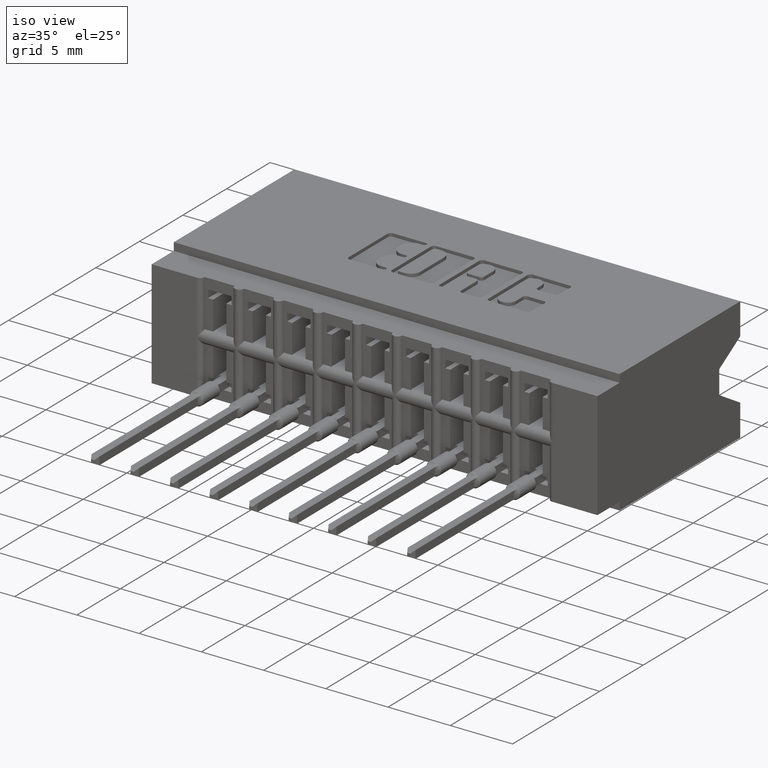
[diagram: clean part render]
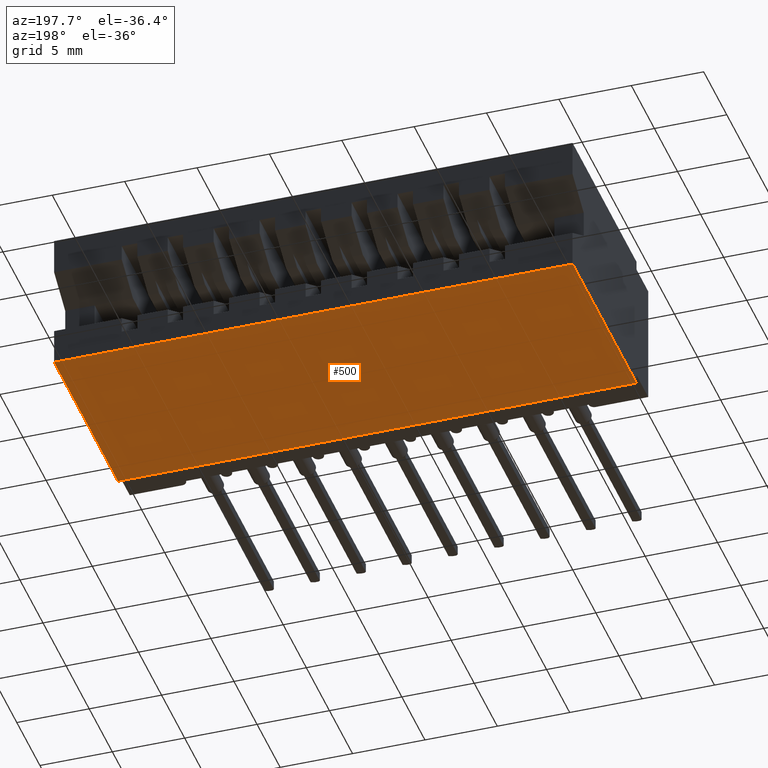
[diagram: tour spotlight — one face highlighted and labeled with its STEP entity id]
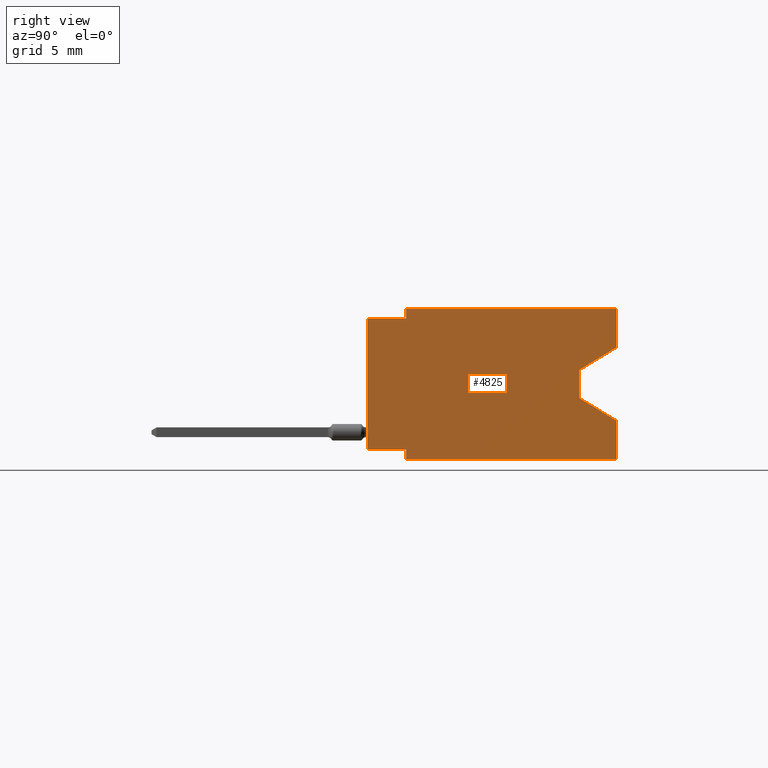
[diagram: tour spotlight — one face highlighted and labeled with its STEP entity id]
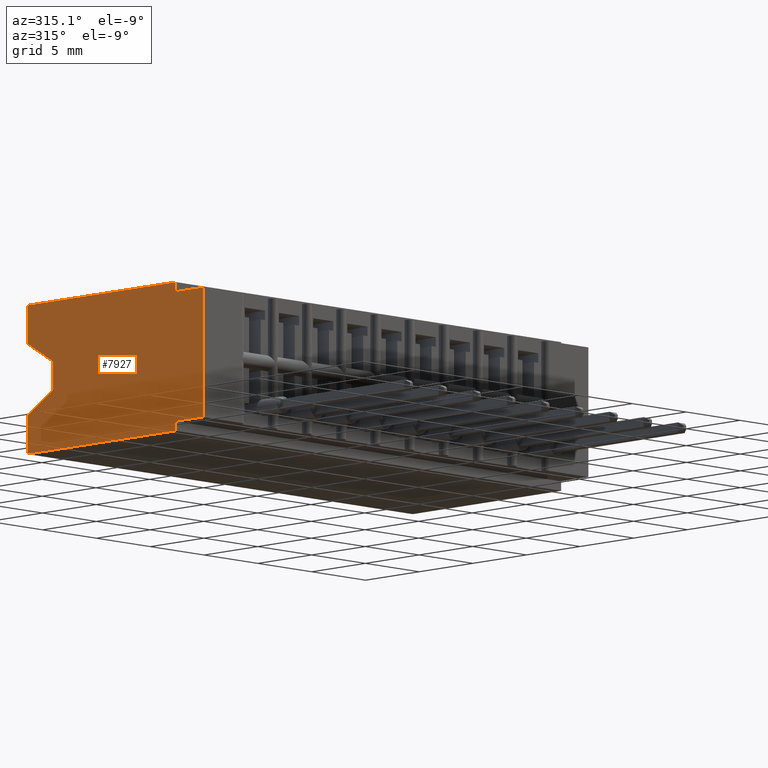
[diagram: tour spotlight — one face highlighted and labeled with its STEP entity id]
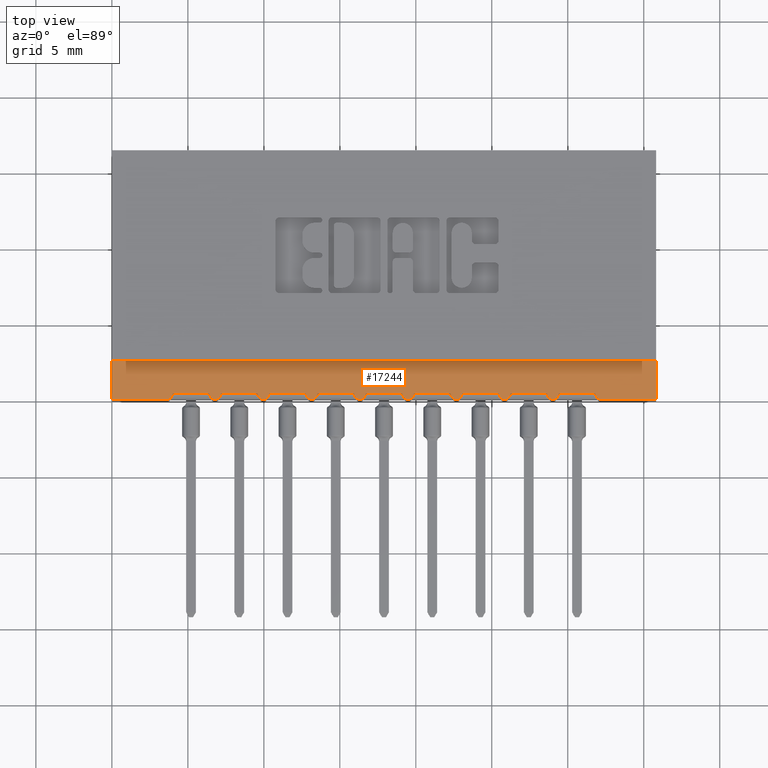
[diagram: tour spotlight — one face highlighted and labeled with its STEP entity id]
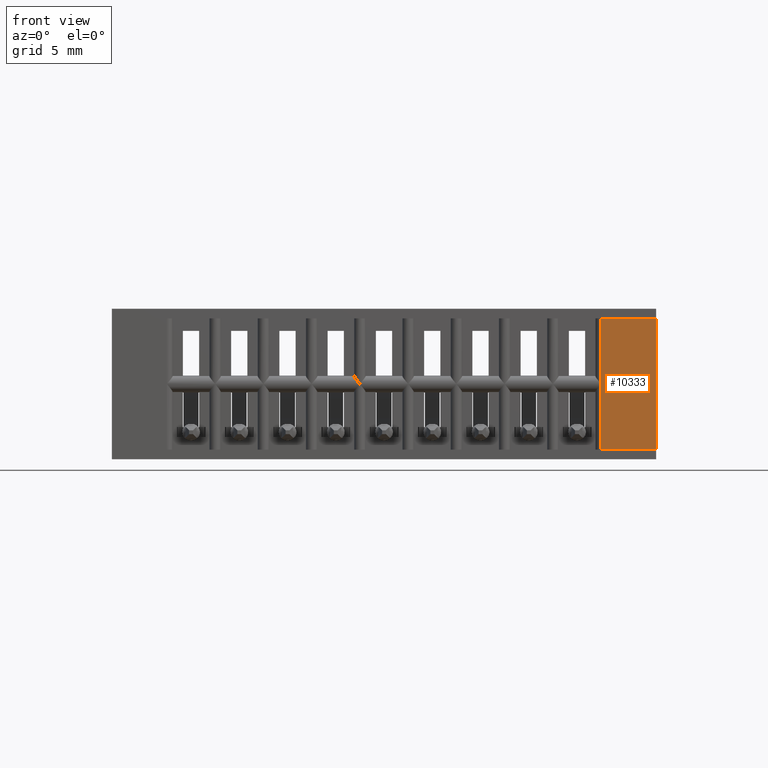
[diagram: tour spotlight — one face highlighted and labeled with its STEP entity id]
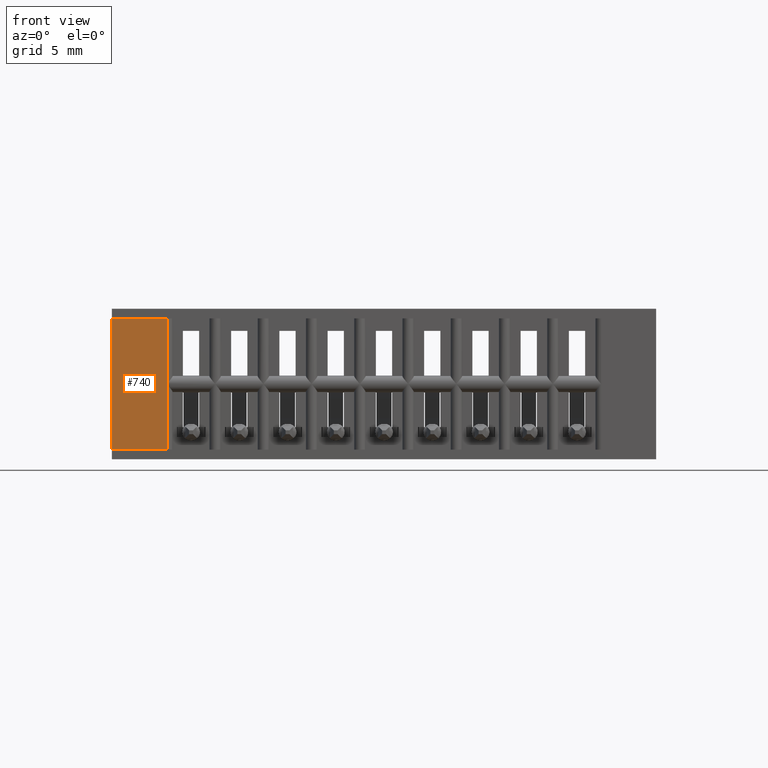
[diagram: tour spotlight — one face highlighted and labeled with its STEP entity id]
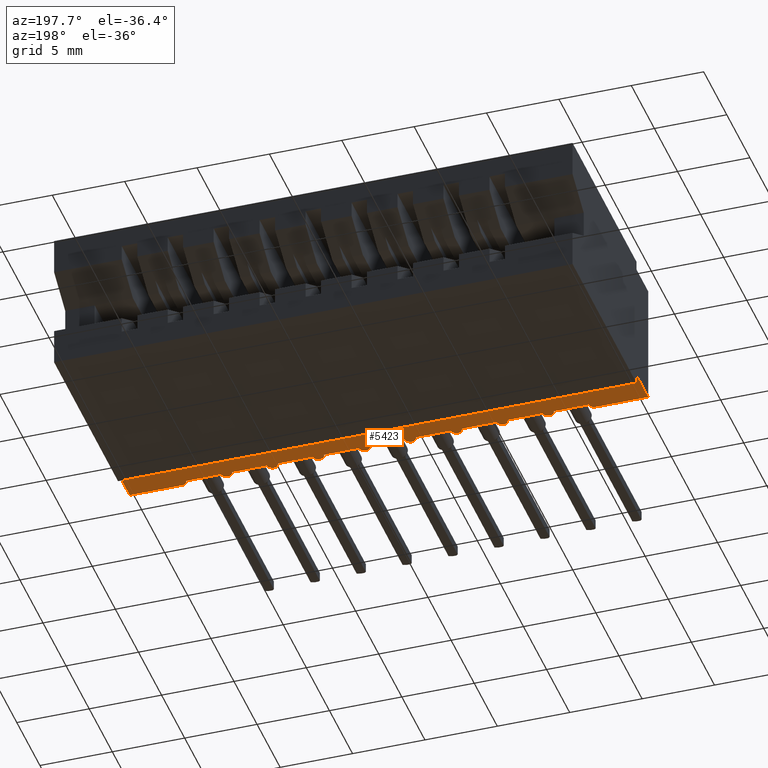
[diagram: tour spotlight — one face highlighted and labeled with its STEP entity id]
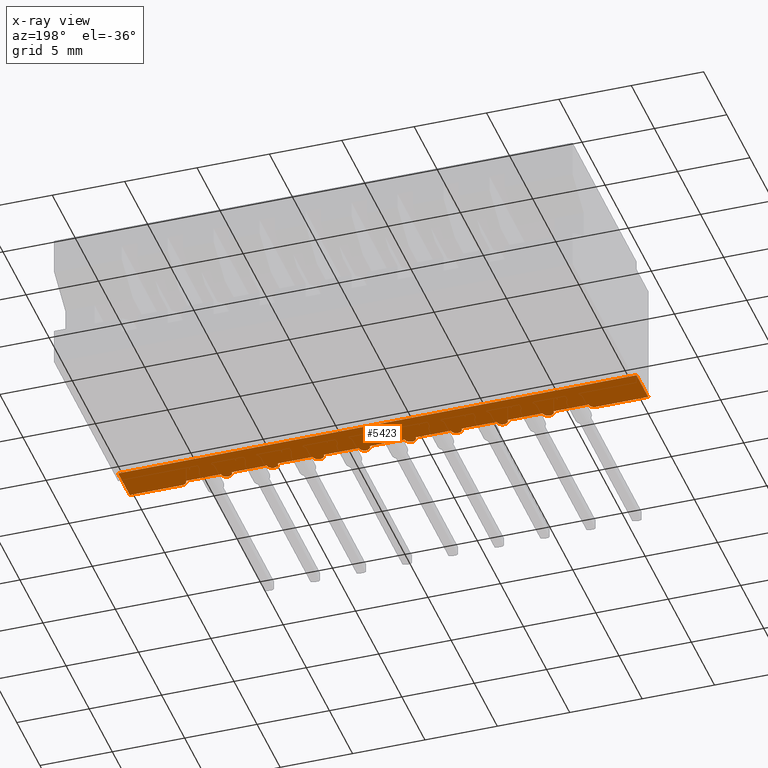
[diagram: x-ray of the same camera — body ghosted, this tour face saturated]
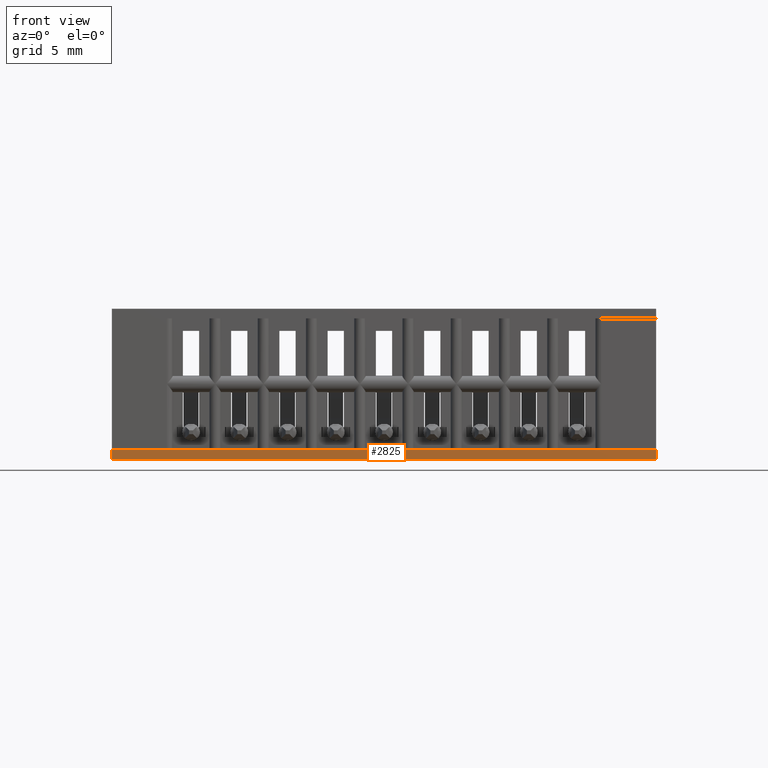
[diagram: tour spotlight — one face highlighted and labeled with its STEP entity id]
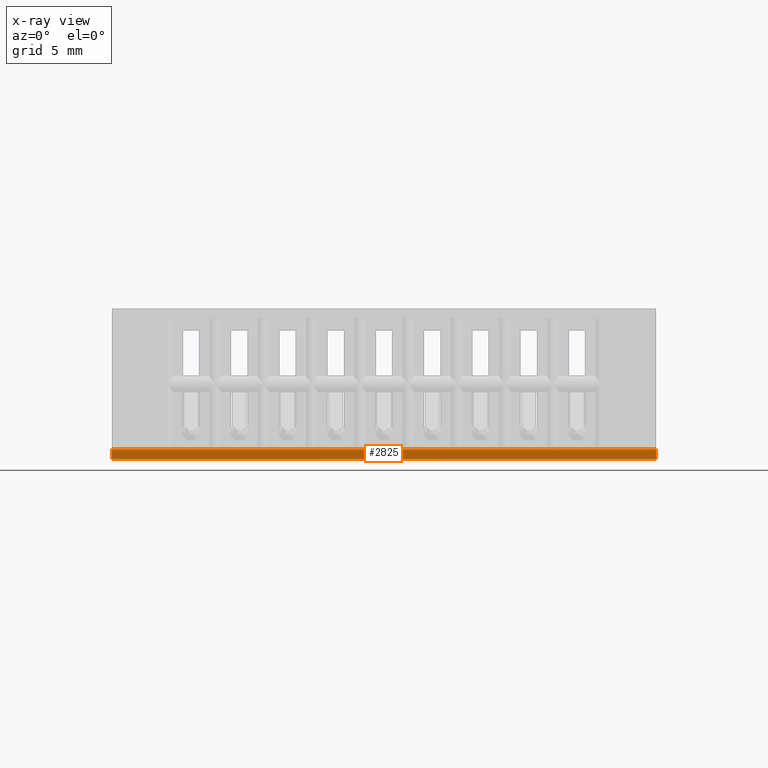
[diagram: x-ray of the same camera — body ghosted, this tour face saturated]
A machine part: a face-by-face anatomy tour. The part has 1070 B-rep faces; the first image is the clean iso view, then the 8 largest visible faces are spotlighted one at a time (largest first), each with its STEP entity span.

Face 1 — auxiliary view, entity #500. In plain terms, the highlighted planar face has unit normal (0, 0, 1).
Definition (entity closure, byte-faithful):
#500 = ADVANCED_FACE ( 'NONE', ( #13667 ), #2564, .F. ) ;
#602 = ORIENTED_EDGE ( 'NONE', *, *, #5755, .F. ) ;
#1334 = EDGE_CURVE ( 'NONE', #10095, #8958, #3892, .T. ) ;
#2377 = LINE ( 'NONE', #8095, #16700 ) ;
#2564 = PLANE ( 'NONE',  #17837 ) ;
#3147 = EDGE_CURVE ( 'NONE', #6317, #10095, #15163, .T. ) ;
#3517 = EDGE_CURVE ( 'NONE', #6317, #9070, #2377, .T. ) ;
#3778 = CARTESIAN_POINT ( 'NONE',  ( 1.409999999999999920, 0.6449999999999999067, -0.3900000000000000133 ) ) ;
#3866 = DIRECTION ( 'NONE',  ( 0.0000000000000000000, 0.0000000000000000000, 1.000000000000000000 ) ) ;
#3892 = LINE ( 'NONE', #3974, #10677 ) ;
#3974 = CARTESIAN_POINT ( 'NONE',  ( 1.409999999999999920, 0.1000000000000000056, -0.3900000000000000133 ) ) ;
#5407 = DIRECTION ( 'NONE',  ( -1.000000000000000000, -0.0000000000000000000, -0.0000000000000000000 ) ) ;
#5755 = EDGE_CURVE ( 'NONE', #9070, #8958, #17422, .T. ) ;
#6023 = CARTESIAN_POINT ( 'NONE',  ( 0.0000000000000000000, 0.6449999999999999067, -0.3900000000000000133 ) ) ;
#6317 = VERTEX_POINT ( 'NONE', #3778 ) ;
#6636 = VECTOR ( 'NONE', #12551, 39.37007874015748143 ) ;
#8095 = CARTESIAN_POINT ( 'NONE',  ( 0.0000000000000000000, 0.6449999999999999067, -0.3900000000000000133 ) ) ;
#8495 = ORIENTED_EDGE ( 'NONE', *, *, #1334, .T. ) ;
#8658 = EDGE_LOOP ( 'NONE', ( #15712, #8495, #602, #10501 ) ) ;
#8958 = VERTEX_POINT ( 'NONE', #11394 ) ;
#9070 = VERTEX_POINT ( 'NONE', #12035 ) ;
#9404 = DIRECTION ( 'NONE',  ( 1.000000000000000000, 0.0000000000000000000, -0.0000000000000000000 ) ) ;
#9699 = DIRECTION ( 'NONE',  ( -1.000000000000000000, -0.0000000000000000000, -0.0000000000000000000 ) ) ;
#10095 = VERTEX_POINT ( 'NONE', #13815 ) ;
#10501 = ORIENTED_EDGE ( 'NONE', *, *, #3517, .F. ) ;
#10677 = VECTOR ( 'NONE', #9699, 39.37007874015748143 ) ;
#11394 = CARTESIAN_POINT ( 'NONE',  ( 0.0000000000000000000, 0.1000000000000000056, -0.3900000000000000133 ) ) ;
#12035 = CARTESIAN_POINT ( 'NONE',  ( 0.0000000000000000000, 0.6449999999999999067, -0.3900000000000000133 ) ) ;
#12551 = DIRECTION ( 'NONE',  ( -0.0000000000000000000, -1.000000000000000000, -0.0000000000000000000 ) ) ;
#13667 = FACE_OUTER_BOUND ( 'NONE', #8658, .T. ) ;
#13815 = CARTESIAN_POINT ( 'NONE',  ( 1.409999999999999920, 0.1000000000000000056, -0.3900000000000000133 ) ) ;
#14333 = VECTOR ( 'NONE', #14539, 39.37007874015748143 ) ;
#14539 = DIRECTION ( 'NONE',  ( -0.0000000000000000000, -1.000000000000000000, -0.0000000000000000000 ) ) ;
#15163 = LINE ( 'NONE', #16826, #6636 ) ;
#15712 = ORIENTED_EDGE ( 'NONE', *, *, #3147, .T. ) ;
#16547 = CARTESIAN_POINT ( 'NONE',  ( 0.0000000000000000000, 0.6449999999999999067, -0.3900000000000000133 ) ) ;
#16700 = VECTOR ( 'NONE', #5407, 39.37007874015748143 ) ;
#16826 = CARTESIAN_POINT ( 'NONE',  ( 1.409999999999999920, 0.6449999999999999067, -0.3900000000000000133 ) ) ;
#17422 = LINE ( 'NONE', #6023, #14333 ) ;
#17837 = AXIS2_PLACEMENT_3D ( 'NONE', #16547, #3866, #9404 ) ;

Face 2 — right view, entity #4825. In plain terms, the highlighted planar face has unit normal (-1, 0, 0).
Definition (entity closure, byte-faithful):
#448 = CARTESIAN_POINT ( 'NONE',  ( 1.409999999999999920, 0.0000000000000000000, -0.02500000000000000486 ) ) ;
#451 = VERTEX_POINT ( 'NONE', #448 ) ;
#670 = CARTESIAN_POINT ( 'NONE',  ( 1.409999999999999920, 0.6449999999999999067, -0.2897499999999999520 ) ) ;
#1236 = EDGE_CURVE ( 'NONE', #4686, #6317, #13602, .T. ) ;
#1423 = DIRECTION ( 'NONE',  ( 0.0000000000000000000, 0.0000000000000000000, -1.000000000000000000 ) ) ;
#2233 = CARTESIAN_POINT ( 'NONE',  ( 1.409999999999999920, 0.6449999999999999067, 0.0000000000000000000 ) ) ;
#2334 = CARTESIAN_POINT ( 'NONE',  ( 1.409999999999999920, 0.0000000000000000000, -0.3649999999999999911 ) ) ;
#2446 = CARTESIAN_POINT ( 'NONE',  ( 1.409999999999999920, 0.6449999999999999067, 0.0000000000000000000 ) ) ;
#2461 = ORIENTED_EDGE ( 'NONE', *, *, #10059, .F. ) ;
#2911 = VERTEX_POINT ( 'NONE', #6959 ) ;
#2998 = VERTEX_POINT ( 'NONE', #7855 ) ;
#3051 = EDGE_CURVE ( 'NONE', #14877, #3236, #10178, .T. ) ;
#3140 = ORIENTED_EDGE ( 'NONE', *, *, #17710, .T. ) ;
#3147 = EDGE_CURVE ( 'NONE', #6317, #10095, #15163, .T. ) ;
#3161 = ORIENTED_EDGE ( 'NONE', *, *, #3147, .F. ) ;
#3236 = VERTEX_POINT ( 'NONE', #12826 ) ;
#3489 = DIRECTION ( 'NONE',  ( 0.0000000000000000000, 0.0000000000000000000, -1.000000000000000000 ) ) ;
#3515 = ORIENTED_EDGE ( 'NONE', *, *, #15235, .F. ) ;
#3601 = CARTESIAN_POINT ( 'NONE',  ( 1.409999999999999920, 0.1000000000000000056, -0.3900000000000000133 ) ) ;
#3778 = CARTESIAN_POINT ( 'NONE',  ( 1.409999999999999920, 0.6449999999999999067, -0.3900000000000000133 ) ) ;
#3797 = DIRECTION ( 'NONE',  ( 0.0000000000000000000, 0.0000000000000000000, 1.000000000000000000 ) ) ;
#3877 = DIRECTION ( 'NONE',  ( 0.0000000000000000000, 0.8545023705661023428, -0.5194474936862353287 ) ) ;
#4294 = LINE ( 'NONE', #15601, #5820 ) ;
#4320 = ORIENTED_EDGE ( 'NONE', *, *, #14132, .T. ) ;
#4686 = VERTEX_POINT ( 'NONE', #670 ) ;
#4825 = ADVANCED_FACE ( 'NONE', ( #8053 ), #4906, .F. ) ;
#4906 = PLANE ( 'NONE',  #10461 ) ;
#4927 = EDGE_CURVE ( 'NONE', #451, #14877, #12567, .T. ) ;
#5341 = DIRECTION ( 'NONE',  ( -0.0000000000000000000, -0.0000000000000000000, -1.000000000000000000 ) ) ;
#5496 = DIRECTION ( 'NONE',  ( 0.0000000000000000000, 0.0000000000000000000, -1.000000000000000000 ) ) ;
#5820 = VECTOR ( 'NONE', #5496, 39.37007874015748143 ) ;
#5926 = DIRECTION ( 'NONE',  ( 0.0000000000000000000, -0.8545023705661021207, -0.5194474936862355507 ) ) ;
#6317 = VERTEX_POINT ( 'NONE', #3778 ) ;
#6559 = VECTOR ( 'NONE', #17602, 39.37007874015748143 ) ;
#6636 = VECTOR ( 'NONE', #12551, 39.37007874015748143 ) ;
#6755 = DIRECTION ( 'NONE',  ( 0.0000000000000000000, 0.0000000000000000000, -1.000000000000000000 ) ) ;
#6853 = CARTESIAN_POINT ( 'NONE',  ( 1.409999999999999920, 0.5499999999999999334, -0.1580000000000000016 ) ) ;
#6959 = CARTESIAN_POINT ( 'NONE',  ( 1.409999999999999920, 0.1000000000000000056, -0.02500000000000000486 ) ) ;
#7169 = ORIENTED_EDGE ( 'NONE', *, *, #15359, .T. ) ;
#7247 = VERTEX_POINT ( 'NONE', #2446 ) ;
#7312 = LINE ( 'NONE', #10167, #12063 ) ;
#7652 = CARTESIAN_POINT ( 'NONE',  ( 1.409999999999999920, 0.1000000000000000056, 0.0000000000000000000 ) ) ;
#7745 = CARTESIAN_POINT ( 'NONE',  ( 1.409999999999999920, 0.6449999999999999067, -0.1002500000000000058 ) ) ;
#7759 = ORIENTED_EDGE ( 'NONE', *, *, #11754, .F. ) ;
#7778 = DIRECTION ( 'NONE',  ( -1.000000000000000000, 0.0000000000000000000, 0.0000000000000000000 ) ) ;
#7855 = CARTESIAN_POINT ( 'NONE',  ( 1.409999999999999920, 0.1000000000000000056, 0.0000000000000000000 ) ) ;
#7995 = VERTEX_POINT ( 'NONE', #7745 ) ;
#8033 = EDGE_CURVE ( 'NONE', #7247, #7995, #4294, .T. ) ;
#8053 = FACE_OUTER_BOUND ( 'NONE', #12001, .T. ) ;
#8594 = CARTESIAN_POINT ( 'NONE',  ( 1.409999999999999920, 0.0000000000000000000, 0.0000000000000000000 ) ) ;
#8645 = ORIENTED_EDGE ( 'NONE', *, *, #9790, .T. ) ;
#8776 = VECTOR ( 'NONE', #1423, 39.37007874015748143 ) ;
#9097 = CARTESIAN_POINT ( 'NONE',  ( 1.409999999999999920, 0.0000000000000000000, -0.02500000000000000486 ) ) ;
#9290 = VECTOR ( 'NONE', #9412, 39.37007874015748143 ) ;
#9412 = DIRECTION ( 'NONE',  ( 0.0000000000000000000, 1.000000000000000000, 0.0000000000000000000 ) ) ;
#9790 = EDGE_CURVE ( 'NONE', #2911, #451, #12199, .T. ) ;
#9940 = VECTOR ( 'NONE', #10307, 39.37007874015748143 ) ;
#10059 = EDGE_CURVE ( 'NONE', #13800, #14932, #18005, .T. ) ;
#10095 = VERTEX_POINT ( 'NONE', #13815 ) ;
#10167 = CARTESIAN_POINT ( 'NONE',  ( 1.409999999999999920, 0.6449999999999999067, -0.1002500000000000058 ) ) ;
#10178 = LINE ( 'NONE', #16465, #9290 ) ;
#10307 = DIRECTION ( 'NONE',  ( -0.0000000000000000000, -1.000000000000000000, -0.0000000000000000000 ) ) ;
#10461 = AXIS2_PLACEMENT_3D ( 'NONE', #2233, #7778, #3797 ) ;
#10893 = LINE ( 'NONE', #16557, #12117 ) ;
#11026 = ORIENTED_EDGE ( 'NONE', *, *, #8033, .F. ) ;
#11754 = EDGE_CURVE ( 'NONE', #7995, #13800, #7312, .T. ) ;
#11806 = LINE ( 'NONE', #7652, #18046 ) ;
#11888 = CARTESIAN_POINT ( 'NONE',  ( 1.409999999999999920, 0.6449999999999999067, 0.0000000000000000000 ) ) ;
#11901 = ORIENTED_EDGE ( 'NONE', *, *, #4927, .T. ) ;
#12001 = EDGE_LOOP ( 'NONE', ( #7759, #11026, #3140, #7169, #8645, #11901, #13150, #4320, #3161, #13256, #3515, #2461 ) ) ;
#12063 = VECTOR ( 'NONE', #5926, 39.37007874015748854 ) ;
#12117 = VECTOR ( 'NONE', #3877, 39.37007874015748854 ) ;
#12199 = LINE ( 'NONE', #9097, #9940 ) ;
#12427 = VECTOR ( 'NONE', #5341, 39.37007874015748143 ) ;
#12551 = DIRECTION ( 'NONE',  ( -0.0000000000000000000, -1.000000000000000000, -0.0000000000000000000 ) ) ;
#12567 = LINE ( 'NONE', #8594, #15211 ) ;
#12826 = CARTESIAN_POINT ( 'NONE',  ( 1.409999999999999920, 0.1000000000000000056, -0.3649999999999999911 ) ) ;
#13150 = ORIENTED_EDGE ( 'NONE', *, *, #3051, .T. ) ;
#13179 = LINE ( 'NONE', #11888, #15998 ) ;
#13256 = ORIENTED_EDGE ( 'NONE', *, *, #1236, .F. ) ;
#13602 = LINE ( 'NONE', #17877, #6559 ) ;
#13800 = VERTEX_POINT ( 'NONE', #6853 ) ;
#13815 = CARTESIAN_POINT ( 'NONE',  ( 1.409999999999999920, 0.1000000000000000056, -0.3900000000000000133 ) ) ;
#13992 = CARTESIAN_POINT ( 'NONE',  ( 1.409999999999999920, 0.5499999999999999334, -0.1580000000000000016 ) ) ;
#14132 = EDGE_CURVE ( 'NONE', #3236, #10095, #16276, .T. ) ;
#14877 = VERTEX_POINT ( 'NONE', #2334 ) ;
#14932 = VERTEX_POINT ( 'NONE', #15559 ) ;
#15163 = LINE ( 'NONE', #16826, #6636 ) ;
#15211 = VECTOR ( 'NONE', #6755, 39.37007874015748143 ) ;
#15235 = EDGE_CURVE ( 'NONE', #14932, #4686, #10893, .T. ) ;
#15359 = EDGE_CURVE ( 'NONE', #2998, #2911, #11806, .T. ) ;
#15559 = CARTESIAN_POINT ( 'NONE',  ( 1.409999999999999920, 0.5499999999999999334, -0.2320000000000000395 ) ) ;
#15601 = CARTESIAN_POINT ( 'NONE',  ( 1.409999999999999920, 0.6449999999999999067, 0.0000000000000000000 ) ) ;
#15998 = VECTOR ( 'NONE', #17462, 39.37007874015748143 ) ;
#16276 = LINE ( 'NONE', #3601, #12427 ) ;
#16465 = CARTESIAN_POINT ( 'NONE',  ( 1.409999999999999920, 0.0000000000000000000, -0.3649999999999999911 ) ) ;
#16557 = CARTESIAN_POINT ( 'NONE',  ( 1.409999999999999920, 0.5499999999999999334, -0.2320000000000000395 ) ) ;
#16826 = CARTESIAN_POINT ( 'NONE',  ( 1.409999999999999920, 0.6449999999999999067, -0.3900000000000000133 ) ) ;
#17462 = DIRECTION ( 'NONE',  ( -0.0000000000000000000, -1.000000000000000000, -0.0000000000000000000 ) ) ;
#17602 = DIRECTION ( 'NONE',  ( 0.0000000000000000000, 0.0000000000000000000, -1.000000000000000000 ) ) ;
#17710 = EDGE_CURVE ( 'NONE', #7247, #2998, #13179, .T. ) ;
#17877 = CARTESIAN_POINT ( 'NONE',  ( 1.409999999999999920, 0.6449999999999999067, 0.0000000000000000000 ) ) ;
#18005 = LINE ( 'NONE', #13992, #8776 ) ;
#18046 = VECTOR ( 'NONE', #3489, 39.37007874015748143 ) ;

Face 3 — auxiliary view, entity #7927. In plain terms, the highlighted planar face has unit normal (1, 0, 0).
Definition (entity closure, byte-faithful):
#189 = VERTEX_POINT ( 'NONE', #1016 ) ;
#209 = LINE ( 'NONE', #5469, #3568 ) ;
#295 = CARTESIAN_POINT ( 'NONE',  ( 0.0000000000000000000, 0.0000000000000000000, -0.02500000000000000486 ) ) ;
#475 = DIRECTION ( 'NONE',  ( 0.0000000000000000000, 0.0000000000000000000, -1.000000000000000000 ) ) ;
#522 = VECTOR ( 'NONE', #5408, 39.37007874015748854 ) ;
#590 = CARTESIAN_POINT ( 'NONE',  ( 0.0000000000000000000, 0.1000000000000000056, -0.3900000000000000133 ) ) ;
#600 = ORIENTED_EDGE ( 'NONE', *, *, #16760, .F. ) ;
#845 = VECTOR ( 'NONE', #5504, 39.37007874015748143 ) ;
#978 = VERTEX_POINT ( 'NONE', #17740 ) ;
#1016 = CARTESIAN_POINT ( 'NONE',  ( 0.0000000000000000000, 0.1000000000000000056, 0.0000000000000000000 ) ) ;
#1063 = VECTOR ( 'NONE', #7423, 39.37007874015748143 ) ;
#1075 = EDGE_CURVE ( 'NONE', #11183, #11575, #10087, .T. ) ;
#1523 = VECTOR ( 'NONE', #14344, 39.37007874015748143 ) ;
#1772 = LINE ( 'NONE', #3437, #17302 ) ;
#1869 = EDGE_CURVE ( 'NONE', #9918, #978, #8301, .T. ) ;
#1976 = CARTESIAN_POINT ( 'NONE',  ( 0.0000000000000000000, 0.6449999999999999067, -0.2897500000000000075 ) ) ;
#1983 = VECTOR ( 'NONE', #6793, 39.37007874015748143 ) ;
#2972 = VECTOR ( 'NONE', #475, 39.37007874015748143 ) ;
#3194 = ORIENTED_EDGE ( 'NONE', *, *, #1869, .F. ) ;
#3243 = CARTESIAN_POINT ( 'NONE',  ( 0.0000000000000000000, 0.6449999999999999067, 0.0000000000000000000 ) ) ;
#3437 = CARTESIAN_POINT ( 'NONE',  ( 0.0000000000000000000, 0.0000000000000000000, 0.0000000000000000000 ) ) ;
#3568 = VECTOR ( 'NONE', #5835, 39.37007874015748143 ) ;
#4131 = ORIENTED_EDGE ( 'NONE', *, *, #8050, .T. ) ;
#4221 = DIRECTION ( 'NONE',  ( 0.0000000000000000000, 1.000000000000000000, 0.0000000000000000000 ) ) ;
#4251 = EDGE_CURVE ( 'NONE', #978, #8958, #14641, .T. ) ;
#4281 = ORIENTED_EDGE ( 'NONE', *, *, #13449, .F. ) ;
#4354 = CARTESIAN_POINT ( 'NONE',  ( 0.0000000000000000000, 0.6449999999999999067, 0.0000000000000000000 ) ) ;
#4472 = VERTEX_POINT ( 'NONE', #6456 ) ;
#4617 = LINE ( 'NONE', #3243, #9738 ) ;
#4632 = VERTEX_POINT ( 'NONE', #14340 ) ;
#5408 = DIRECTION ( 'NONE',  ( 0.0000000000000000000, -0.8545023705661021207, -0.5194474936862355507 ) ) ;
#5469 = CARTESIAN_POINT ( 'NONE',  ( 0.0000000000000000000, 0.6449999999999999067, 0.0000000000000000000 ) ) ;
#5504 = DIRECTION ( 'NONE',  ( 0.0000000000000000000, 0.0000000000000000000, -1.000000000000000000 ) ) ;
#5750 = EDGE_CURVE ( 'NONE', #9918, #16811, #1772, .T. ) ;
#5755 = EDGE_CURVE ( 'NONE', #9070, #8958, #17422, .T. ) ;
#5835 = DIRECTION ( 'NONE',  ( -0.0000000000000000000, -1.000000000000000000, -0.0000000000000000000 ) ) ;
#6023 = CARTESIAN_POINT ( 'NONE',  ( 0.0000000000000000000, 0.6449999999999999067, -0.3900000000000000133 ) ) ;
#6291 = CARTESIAN_POINT ( 'NONE',  ( 0.0000000000000000000, 0.1000000000000000056, 0.0000000000000000000 ) ) ;
#6346 = VECTOR ( 'NONE', #4221, 39.37007874015748143 ) ;
#6456 = CARTESIAN_POINT ( 'NONE',  ( 0.0000000000000000000, 0.5499999999999999334, -0.2320000000000000395 ) ) ;
#6793 = DIRECTION ( 'NONE',  ( -0.0000000000000000000, -1.000000000000000000, -0.0000000000000000000 ) ) ;
#6984 = CARTESIAN_POINT ( 'NONE',  ( 0.0000000000000000000, 0.6449999999999999067, -0.1002500000000000058 ) ) ;
#7423 = DIRECTION ( 'NONE',  ( -0.0000000000000000000, -0.0000000000000000000, -1.000000000000000000 ) ) ;
#7466 = CARTESIAN_POINT ( 'NONE',  ( 0.0000000000000000000, 0.5499999999999999334, -0.2320000000000000395 ) ) ;
#7917 = EDGE_LOOP ( 'NONE', ( #4131, #17333, #13979, #600, #11334, #9211, #3194, #10109, #17299, #13622, #4281, #18209 ) ) ;
#7927 = ADVANCED_FACE ( 'NONE', ( #17751 ), #9481, .F. ) ;
#8000 = VECTOR ( 'NONE', #13101, 39.37007874015748854 ) ;
#8050 = EDGE_CURVE ( 'NONE', #11183, #15596, #16804, .T. ) ;
#8096 = DIRECTION ( 'NONE',  ( 0.0000000000000000000, 0.0000000000000000000, -1.000000000000000000 ) ) ;
#8301 = LINE ( 'NONE', #12637, #6346 ) ;
#8522 = CARTESIAN_POINT ( 'NONE',  ( 0.0000000000000000000, 0.6449999999999999067, 0.0000000000000000000 ) ) ;
#8958 = VERTEX_POINT ( 'NONE', #11394 ) ;
#9067 = VERTEX_POINT ( 'NONE', #1976 ) ;
#9070 = VERTEX_POINT ( 'NONE', #12035 ) ;
#9211 = ORIENTED_EDGE ( 'NONE', *, *, #4251, .F. ) ;
#9481 = PLANE ( 'NONE',  #11720 ) ;
#9738 = VECTOR ( 'NONE', #13046, 39.37007874015748143 ) ;
#9918 = VERTEX_POINT ( 'NONE', #15544 ) ;
#10087 = LINE ( 'NONE', #4354, #1523 ) ;
#10109 = ORIENTED_EDGE ( 'NONE', *, *, #5750, .T. ) ;
#10596 = CARTESIAN_POINT ( 'NONE',  ( 0.0000000000000000000, 0.6449999999999999067, 0.0000000000000000000 ) ) ;
#11109 = EDGE_CURVE ( 'NONE', #15596, #4472, #18029, .T. ) ;
#11183 = VERTEX_POINT ( 'NONE', #12360 ) ;
#11326 = CARTESIAN_POINT ( 'NONE',  ( 0.0000000000000000000, 0.5499999999999999334, -0.1580000000000000016 ) ) ;
#11334 = ORIENTED_EDGE ( 'NONE', *, *, #5755, .T. ) ;
#11394 = CARTESIAN_POINT ( 'NONE',  ( 0.0000000000000000000, 0.1000000000000000056, -0.3900000000000000133 ) ) ;
#11564 = DIRECTION ( 'NONE',  ( -0.0000000000000000000, -0.0000000000000000000, 1.000000000000000000 ) ) ;
#11575 = VERTEX_POINT ( 'NONE', #8522 ) ;
#11720 = AXIS2_PLACEMENT_3D ( 'NONE', #10596, #12259, #8096 ) ;
#12035 = CARTESIAN_POINT ( 'NONE',  ( 0.0000000000000000000, 0.6449999999999999067, -0.3900000000000000133 ) ) ;
#12259 = DIRECTION ( 'NONE',  ( 1.000000000000000000, -0.0000000000000000000, 0.0000000000000000000 ) ) ;
#12360 = CARTESIAN_POINT ( 'NONE',  ( 0.0000000000000000000, 0.6449999999999999067, -0.1002500000000000058 ) ) ;
#12637 = CARTESIAN_POINT ( 'NONE',  ( 0.0000000000000000000, 0.0000000000000000000, -0.3649999999999999911 ) ) ;
#12797 = CARTESIAN_POINT ( 'NONE',  ( 0.0000000000000000000, 0.0000000000000000000, -0.02500000000000000486 ) ) ;
#13046 = DIRECTION ( 'NONE',  ( -0.0000000000000000000, -0.0000000000000000000, 1.000000000000000000 ) ) ;
#13101 = DIRECTION ( 'NONE',  ( 0.0000000000000000000, 0.8545023705661023428, -0.5194474936862353287 ) ) ;
#13129 = LINE ( 'NONE', #6291, #2972 ) ;
#13449 = EDGE_CURVE ( 'NONE', #11575, #189, #209, .T. ) ;
#13622 = ORIENTED_EDGE ( 'NONE', *, *, #15060, .F. ) ;
#13979 = ORIENTED_EDGE ( 'NONE', *, *, #14379, .T. ) ;
#14333 = VECTOR ( 'NONE', #14539, 39.37007874015748143 ) ;
#14340 = CARTESIAN_POINT ( 'NONE',  ( 0.0000000000000000000, 0.1000000000000000056, -0.02500000000000000486 ) ) ;
#14344 = DIRECTION ( 'NONE',  ( -0.0000000000000000000, -0.0000000000000000000, 1.000000000000000000 ) ) ;
#14379 = EDGE_CURVE ( 'NONE', #4472, #9067, #17277, .T. ) ;
#14539 = DIRECTION ( 'NONE',  ( -0.0000000000000000000, -1.000000000000000000, -0.0000000000000000000 ) ) ;
#14641 = LINE ( 'NONE', #590, #1063 ) ;
#15060 = EDGE_CURVE ( 'NONE', #189, #4632, #13129, .T. ) ;
#15544 = CARTESIAN_POINT ( 'NONE',  ( 0.0000000000000000000, 0.0000000000000000000, -0.3649999999999999911 ) ) ;
#15596 = VERTEX_POINT ( 'NONE', #11326 ) ;
#15677 = LINE ( 'NONE', #12797, #1983 ) ;
#16263 = EDGE_CURVE ( 'NONE', #4632, #16811, #15677, .T. ) ;
#16454 = CARTESIAN_POINT ( 'NONE',  ( 0.0000000000000000000, 0.5499999999999999334, -0.1580000000000000016 ) ) ;
#16760 = EDGE_CURVE ( 'NONE', #9070, #9067, #4617, .T. ) ;
#16804 = LINE ( 'NONE', #6984, #522 ) ;
#16811 = VERTEX_POINT ( 'NONE', #295 ) ;
#17277 = LINE ( 'NONE', #7466, #8000 ) ;
#17299 = ORIENTED_EDGE ( 'NONE', *, *, #16263, .F. ) ;
#17302 = VECTOR ( 'NONE', #11564, 39.37007874015748143 ) ;
#17333 = ORIENTED_EDGE ( 'NONE', *, *, #11109, .T. ) ;
#17422 = LINE ( 'NONE', #6023, #14333 ) ;
#17740 = CARTESIAN_POINT ( 'NONE',  ( 0.0000000000000000000, 0.1000000000000000056, -0.3649999999999999911 ) ) ;
#17751 = FACE_OUTER_BOUND ( 'NONE', #7917, .T. ) ;
#18029 = LINE ( 'NONE', #16454, #845 ) ;
#18209 = ORIENTED_EDGE ( 'NONE', *, *, #1075, .F. ) ;

Face 4 — top view, entity #17244. In plain terms, the highlighted planar face has unit normal (0, 0, -1).
Definition (entity closure, byte-faithful):
#41 = AXIS2_PLACEMENT_3D ( 'NONE', #13553, #5558, #12588 ) ;
#110 = EDGE_CURVE ( 'NONE', #7771, #4290, #5982, .T. ) ;
#142 = AXIS2_PLACEMENT_3D ( 'NONE', #10814, #16476, #17598 ) ;
#295 = CARTESIAN_POINT ( 'NONE',  ( 0.0000000000000000000, 0.0000000000000000000, -0.02500000000000000486 ) ) ;
#388 = CARTESIAN_POINT ( 'NONE',  ( 0.6424999999999996270, 0.01499999999999997169, -0.02500000000000000486 ) ) ;
#422 = LINE ( 'NONE', #10022, #15266 ) ;
#448 = CARTESIAN_POINT ( 'NONE',  ( 1.409999999999999920, 0.0000000000000000000, -0.02500000000000000486 ) ) ;
#451 = VERTEX_POINT ( 'NONE', #448 ) ;
#488 = DIRECTION ( 'NONE',  ( 1.000000000000000000, -0.0000000000000000000, -2.307304048702925122E-16 ) ) ;
#502 = DIRECTION ( 'NONE',  ( 1.000000000000000000, -0.0000000000000000000, -2.307304048702925122E-16 ) ) ;
#555 = VERTEX_POINT ( 'NONE', #9496 ) ;
#603 = LINE ( 'NONE', #6045, #6553 ) ;
#704 = CARTESIAN_POINT ( 'NONE',  ( 1.002499999999999725, 0.01499999999999997169, -0.02500000000000000486 ) ) ;
#912 = EDGE_CURVE ( 'NONE', #4039, #8662, #2106, .T. ) ;
#955 = VECTOR ( 'NONE', #1801, 39.37007874015748143 ) ;
#1024 = CARTESIAN_POINT ( 'NONE',  ( 0.6574999999999997513, 0.01499999999999997169, -0.02500000000000000486 ) ) ;
#1091 = CIRCLE ( 'NONE', #4623, 0.01499999999999997689 ) ;
#1290 = CARTESIAN_POINT ( 'NONE',  ( 0.6839999999999997193, 0.01499999999999999424, -0.02500000000000003608 ) ) ;
#1427 = CIRCLE ( 'NONE', #14125, 0.01499999999999997689 ) ;
#1607 = CARTESIAN_POINT ( 'NONE',  ( 1.142499999999999627, 0.01499999999999997169, -0.02500000000000000486 ) ) ;
#1650 = DIRECTION ( 'NONE',  ( 0.0000000000000000000, 0.0000000000000000000, -1.000000000000000000 ) ) ;
#1685 = ORIENTED_EDGE ( 'NONE', *, *, #2966, .F. ) ;
#1718 = VECTOR ( 'NONE', #17546, 39.37007874015748143 ) ;
#1737 = VECTOR ( 'NONE', #8240, 39.37007874015748143 ) ;
#1758 = ORIENTED_EDGE ( 'NONE', *, *, #17959, .F. ) ;
#1801 = DIRECTION ( 'NONE',  ( 1.000000000000000000, -0.0000000000000000000, -2.307304048702925122E-16 ) ) ;
#1983 = VECTOR ( 'NONE', #6793, 39.37007874015748143 ) ;
#2106 = CIRCLE ( 'NONE', #41, 0.01499999999999997689 ) ;
#2261 = ORIENTED_EDGE ( 'NONE', *, *, #9264, .T. ) ;
#2469 = EDGE_CURVE ( 'NONE', #4465, #12217, #10388, .T. ) ;
#2496 = EDGE_CURVE ( 'NONE', #3672, #4039, #603, .T. ) ;
#2810 = ORIENTED_EDGE ( 'NONE', *, *, #2941, .T. ) ;
#2818 = EDGE_CURVE ( 'NONE', #13658, #6233, #10608, .T. ) ;
#2911 = VERTEX_POINT ( 'NONE', #6959 ) ;
#2941 = EDGE_CURVE ( 'NONE', #12217, #10308, #10172, .T. ) ;
#2966 = EDGE_CURVE ( 'NONE', #4465, #11455, #16992, .T. ) ;
#3188 = CARTESIAN_POINT ( 'NONE',  ( 0.7824999999999997513, 0.01499999999999997169, -0.02500000000000000486 ) ) ;
#3340 = LINE ( 'NONE', #11928, #3590 ) ;
#3590 = VECTOR ( 'NONE', #13413, 39.37007874015748143 ) ;
#3651 = CARTESIAN_POINT ( 'NONE',  ( 1.058999999999999719, 0.01499999999999999424, -0.02500000000000003608 ) ) ;
#3672 = VERTEX_POINT ( 'NONE', #3188 ) ;
#3739 = LINE ( 'NONE', #3651, #1718 ) ;
#3802 = VERTEX_POINT ( 'NONE', #17355 ) ;
#3917 = CARTESIAN_POINT ( 'NONE',  ( 0.8774999999999997247, 0.01499999999999997169, -0.02500000000000000486 ) ) ;
#3979 = AXIS2_PLACEMENT_3D ( 'NONE', #17329, #7946, #4631 ) ;
#4039 = VERTEX_POINT ( 'NONE', #3917 ) ;
#4054 = CARTESIAN_POINT ( 'NONE',  ( 1.017499999999999627, 0.01499999999999997169, -0.02500000000000000486 ) ) ;
#4082 = CARTESIAN_POINT ( 'NONE',  ( 0.3089999999999997193, 0.01499999999999999424, -0.02500000000000003608 ) ) ;
#4093 = AXIS2_PLACEMENT_3D ( 'NONE', #388, #4434, #5822 ) ;
#4258 = CARTESIAN_POINT ( 'NONE',  ( 1.409999999999999920, 0.0000000000000000000, -0.02500000000000000486 ) ) ;
#4290 = VERTEX_POINT ( 'NONE', #7513 ) ;
#4434 = DIRECTION ( 'NONE',  ( -0.0000000000000000000, 0.0000000000000000000, 1.000000000000000000 ) ) ;
#4465 = VERTEX_POINT ( 'NONE', #10427 ) ;
#4613 = CARTESIAN_POINT ( 'NONE',  ( 0.5589999999999997193, 0.01499999999999999424, -0.02500000000000003608 ) ) ;
#4623 = AXIS2_PLACEMENT_3D ( 'NONE', #1607, #8720, #7243 ) ;
#4631 = DIRECTION ( 'NONE',  ( 1.000000000000000000, 0.0000000000000000000, 0.0000000000000000000 ) ) ;
#4632 = VERTEX_POINT ( 'NONE', #14340 ) ;
#4742 = VECTOR ( 'NONE', #6928, 39.37007874015748143 ) ;
#4753 = DIRECTION ( 'NONE',  ( -1.000000000000000000, -0.0000000000000000000, -0.0000000000000000000 ) ) ;
#4804 = DIRECTION ( 'NONE',  ( -0.0000000000000000000, 0.0000000000000000000, 1.000000000000000000 ) ) ;
#4808 = EDGE_CURVE ( 'NONE', #14969, #5225, #4904, .T. ) ;
#4904 = CIRCLE ( 'NONE', #142, 0.01499999999999997689 ) ;
#5222 = CARTESIAN_POINT ( 'NONE',  ( 0.7674999999999996270, 0.01499999999999997169, -0.02500000000000000486 ) ) ;
#5225 = VERTEX_POINT ( 'NONE', #7093 ) ;
#5269 = CARTESIAN_POINT ( 'NONE',  ( 1.252499999999999503, 0.01499999999999997169, -0.02500000000000000486 ) ) ;
#5542 = VERTEX_POINT ( 'NONE', #9448 ) ;
#5554 = LINE ( 'NONE', #16768, #18074 ) ;
#5558 = DIRECTION ( 'NONE',  ( -0.0000000000000000000, 0.0000000000000000000, 1.000000000000000000 ) ) ;
#5600 = ORIENTED_EDGE ( 'NONE', *, *, #9429, .T. ) ;
#5701 = CARTESIAN_POINT ( 'NONE',  ( 1.032499999999999751, 0.01499999999999997169, -0.02500000000000000486 ) ) ;
#5822 = DIRECTION ( 'NONE',  ( 1.000000000000000000, 0.0000000000000000000, 0.0000000000000000000 ) ) ;
#5856 = CIRCLE ( 'NONE', #4093, 0.01499999999999997689 ) ;
#5931 = CARTESIAN_POINT ( 'NONE',  ( 0.2524999999999996692, 0.01499999999999997169, -0.02500000000000000486 ) ) ;
#5982 = CIRCLE ( 'NONE', #6835, 0.01499999999999997689 ) ;
#5985 = CARTESIAN_POINT ( 'NONE',  ( 0.5024999999999996136, 0.01499999999999997169, -0.02500000000000000486 ) ) ;
#6039 = AXIS2_PLACEMENT_3D ( 'NONE', #14443, #16374, #12191 ) ;
#6044 = ORIENTED_EDGE ( 'NONE', *, *, #9790, .F. ) ;
#6045 = CARTESIAN_POINT ( 'NONE',  ( 0.8089999999999997193, 0.01499999999999999424, -0.02500000000000003608 ) ) ;
#6233 = VERTEX_POINT ( 'NONE', #7575 ) ;
#6420 = VERTEX_POINT ( 'NONE', #5701 ) ;
#6516 = AXIS2_PLACEMENT_3D ( 'NONE', #10060, #1650, #13025 ) ;
#6553 = VECTOR ( 'NONE', #7441, 39.37007874015748143 ) ;
#6793 = DIRECTION ( 'NONE',  ( -0.0000000000000000000, -1.000000000000000000, -0.0000000000000000000 ) ) ;
#6835 = AXIS2_PLACEMENT_3D ( 'NONE', #9140, #4804, #16101 ) ;
#6857 = ORIENTED_EDGE ( 'NONE', *, *, #10829, .T. ) ;
#6927 = EDGE_CURVE ( 'NONE', #2911, #4632, #422, .T. ) ;
#6928 = DIRECTION ( 'NONE',  ( 1.000000000000000000, -0.0000000000000000000, -2.307304048702925122E-16 ) ) ;
#6959 = CARTESIAN_POINT ( 'NONE',  ( 1.409999999999999920, 0.1000000000000000056, -0.02500000000000000486 ) ) ;
#7038 = CARTESIAN_POINT ( 'NONE',  ( 1.127499999999999725, 0.01499999999999997169, -0.02500000000000000486 ) ) ;
#7093 = CARTESIAN_POINT ( 'NONE',  ( 0.4074999999999996958, 0.01499999999999997169, -0.02500000000000000486 ) ) ;
#7156 = CARTESIAN_POINT ( 'NONE',  ( 0.4339999999999996638, 0.01499999999999999424, -0.02500000000000003608 ) ) ;
#7221 = DIRECTION ( 'NONE',  ( 1.000000000000000000, -0.0000000000000000000, -2.307304048702925122E-16 ) ) ;
#7243 = DIRECTION ( 'NONE',  ( 1.000000000000000000, 0.0000000000000000000, 0.0000000000000000000 ) ) ;
#7382 = PLANE ( 'NONE',  #6516 ) ;
#7441 = DIRECTION ( 'NONE',  ( 1.000000000000000000, -0.0000000000000000000, -2.307304048702925122E-16 ) ) ;
#7496 = LINE ( 'NONE', #4613, #7636 ) ;
#7513 = CARTESIAN_POINT ( 'NONE',  ( 0.5324999999999997513, 0.01499999999999997169, -0.02500000000000000486 ) ) ;
#7575 = CARTESIAN_POINT ( 'NONE',  ( 1.267499999999999627, 0.0000000000000000000, -0.02500000000000000486 ) ) ;
#7636 = VECTOR ( 'NONE', #16949, 39.37007874015748143 ) ;
#7771 = VERTEX_POINT ( 'NONE', #5985 ) ;
#7946 = DIRECTION ( 'NONE',  ( 0.0000000000000000000, -0.0000000000000000000, -1.000000000000000000 ) ) ;
#8058 = ORIENTED_EDGE ( 'NONE', *, *, #16408, .T. ) ;
#8182 = DIRECTION ( 'NONE',  ( 1.000000000000000000, 0.0000000000000000000, 0.0000000000000000000 ) ) ;
#8240 = DIRECTION ( 'NONE',  ( 1.000000000000000000, -0.0000000000000000000, -2.307304048702925122E-16 ) ) ;
#8258 = ORIENTED_EDGE ( 'NONE', *, *, #110, .T. ) ;
#8325 = VERTEX_POINT ( 'NONE', #704 ) ;
#8530 = CARTESIAN_POINT ( 'NONE',  ( 1.267499999999999627, 0.01499999999999997169, -0.02500000000000000486 ) ) ;
#8662 = VERTEX_POINT ( 'NONE', #15694 ) ;
#8682 = CARTESIAN_POINT ( 'NONE',  ( 0.3774999999999996692, 0.01499999999999997169, -0.02500000000000000486 ) ) ;
#8698 = EDGE_CURVE ( 'NONE', #6420, #9258, #3739, .T. ) ;
#8720 = DIRECTION ( 'NONE',  ( -0.0000000000000000000, 0.0000000000000000000, 1.000000000000000000 ) ) ;
#9007 = EDGE_CURVE ( 'NONE', #5225, #7771, #15853, .T. ) ;
#9097 = CARTESIAN_POINT ( 'NONE',  ( 1.409999999999999920, 0.0000000000000000000, -0.02500000000000000486 ) ) ;
#9140 = CARTESIAN_POINT ( 'NONE',  ( 0.5174999999999996270, 0.01499999999999997169, -0.02500000000000000486 ) ) ;
#9184 = CARTESIAN_POINT ( 'NONE',  ( 0.1839999999999996916, 0.01499999999999999424, -0.02500000000000003608 ) ) ;
#9217 = ORIENTED_EDGE ( 'NONE', *, *, #12879, .T. ) ;
#9258 = VERTEX_POINT ( 'NONE', #7038 ) ;
#9264 = EDGE_CURVE ( 'NONE', #5542, #13658, #15285, .T. ) ;
#9371 = EDGE_CURVE ( 'NONE', #3802, #10841, #5856, .T. ) ;
#9429 = EDGE_CURVE ( 'NONE', #4290, #3802, #7496, .T. ) ;
#9448 = CARTESIAN_POINT ( 'NONE',  ( 1.157499999999999751, 0.01499999999999997169, -0.02500000000000000486 ) ) ;
#9496 = CARTESIAN_POINT ( 'NONE',  ( 0.7524999999999997247, 0.01499999999999997169, -0.02500000000000000486 ) ) ;
#9505 = ORIENTED_EDGE ( 'NONE', *, *, #2818, .T. ) ;
#9691 = DIRECTION ( 'NONE',  ( -0.0000000000000000000, 0.0000000000000000000, 1.000000000000000000 ) ) ;
#9790 = EDGE_CURVE ( 'NONE', #2911, #451, #12199, .T. ) ;
#9815 = DIRECTION ( 'NONE',  ( -0.0000000000000000000, 0.0000000000000000000, 1.000000000000000000 ) ) ;
#9940 = VECTOR ( 'NONE', #10307, 39.37007874015748143 ) ;
#10022 = CARTESIAN_POINT ( 'NONE',  ( 1.409999999999999920, 0.1000000000000000056, -0.02500000000000000486 ) ) ;
#10060 = CARTESIAN_POINT ( 'NONE',  ( 1.409999999999999920, 0.0000000000000000000, -0.02500000000000000486 ) ) ;
#10172 = CIRCLE ( 'NONE', #6039, 0.01500000000000001159 ) ;
#10307 = DIRECTION ( 'NONE',  ( -0.0000000000000000000, -1.000000000000000000, -0.0000000000000000000 ) ) ;
#10308 = VERTEX_POINT ( 'NONE', #17616 ) ;
#10388 = LINE ( 'NONE', #9184, #955 ) ;
#10427 = CARTESIAN_POINT ( 'NONE',  ( 0.1574999999999997236, 0.01499999999999997169, -0.02500000000000000486 ) ) ;
#10608 = CIRCLE ( 'NONE', #17729, 0.01499999999999997689 ) ;
#10814 = CARTESIAN_POINT ( 'NONE',  ( 0.3924999999999996825, 0.01499999999999997169, -0.02500000000000000486 ) ) ;
#10829 = EDGE_CURVE ( 'NONE', #8325, #6420, #1427, .T. ) ;
#10841 = VERTEX_POINT ( 'NONE', #1024 ) ;
#10908 = AXIS2_PLACEMENT_3D ( 'NONE', #5222, #15045, #8182 ) ;
#11007 = ORIENTED_EDGE ( 'NONE', *, *, #2496, .T. ) ;
#11283 = CARTESIAN_POINT ( 'NONE',  ( 1.183999999999999719, 0.01499999999999999424, -0.02500000000000003608 ) ) ;
#11455 = VERTEX_POINT ( 'NONE', #17554 ) ;
#11550 = EDGE_LOOP ( 'NONE', ( #8058, #2261, #9505, #14967, #6044, #13067, #17388, #1758, #1685, #13673, #2810, #17113, #14411, #16719, #8258, #5600, #14980, #13754, #9217, #11007, #15046, #15301, #6857, #11857 ) ) ;
#11857 = ORIENTED_EDGE ( 'NONE', *, *, #8698, .T. ) ;
#11928 = CARTESIAN_POINT ( 'NONE',  ( 1.409999999999999920, 0.0000000000000000000, -0.02500000000000000486 ) ) ;
#12191 = DIRECTION ( 'NONE',  ( 1.000000000000000000, 0.0000000000000000000, 0.0000000000000000000 ) ) ;
#12199 = LINE ( 'NONE', #9097, #9940 ) ;
#12215 = EDGE_CURVE ( 'NONE', #10308, #14969, #16770, .T. ) ;
#12217 = VERTEX_POINT ( 'NONE', #5931 ) ;
#12588 = DIRECTION ( 'NONE',  ( 1.000000000000000000, 0.0000000000000000000, 0.0000000000000000000 ) ) ;
#12797 = CARTESIAN_POINT ( 'NONE',  ( 0.0000000000000000000, 0.0000000000000000000, -0.02500000000000000486 ) ) ;
#12879 = EDGE_CURVE ( 'NONE', #555, #3672, #13573, .T. ) ;
#13025 = DIRECTION ( 'NONE',  ( -1.000000000000000000, 0.0000000000000000000, -0.0000000000000000000 ) ) ;
#13067 = ORIENTED_EDGE ( 'NONE', *, *, #6927, .T. ) ;
#13413 = DIRECTION ( 'NONE',  ( -1.000000000000000000, -0.0000000000000000000, -0.0000000000000000000 ) ) ;
#13553 = CARTESIAN_POINT ( 'NONE',  ( 0.8924999999999997380, 0.01499999999999997169, -0.02500000000000000486 ) ) ;
#13573 = CIRCLE ( 'NONE', #10908, 0.01499999999999997689 ) ;
#13658 = VERTEX_POINT ( 'NONE', #5269 ) ;
#13673 = ORIENTED_EDGE ( 'NONE', *, *, #2469, .T. ) ;
#13754 = ORIENTED_EDGE ( 'NONE', *, *, #17111, .T. ) ;
#13766 = DIRECTION ( 'NONE',  ( 1.000000000000000000, 0.0000000000000000000, 0.0000000000000000000 ) ) ;
#14074 = DIRECTION ( 'NONE',  ( 1.000000000000000000, 0.0000000000000000000, 0.0000000000000000000 ) ) ;
#14125 = AXIS2_PLACEMENT_3D ( 'NONE', #4054, #9691, #13766 ) ;
#14340 = CARTESIAN_POINT ( 'NONE',  ( 0.0000000000000000000, 0.1000000000000000056, -0.02500000000000000486 ) ) ;
#14411 = ORIENTED_EDGE ( 'NONE', *, *, #4808, .T. ) ;
#14443 = CARTESIAN_POINT ( 'NONE',  ( 0.2674999999999996825, 0.01499999999999997169, -0.02500000000000000486 ) ) ;
#14817 = VECTOR ( 'NONE', #15568, 39.37007874015748143 ) ;
#14967 = ORIENTED_EDGE ( 'NONE', *, *, #18084, .F. ) ;
#14969 = VERTEX_POINT ( 'NONE', #8682 ) ;
#14980 = ORIENTED_EDGE ( 'NONE', *, *, #9371, .T. ) ;
#15032 = VECTOR ( 'NONE', #502, 39.37007874015748143 ) ;
#15045 = DIRECTION ( 'NONE',  ( -0.0000000000000000000, 0.0000000000000000000, 1.000000000000000000 ) ) ;
#15046 = ORIENTED_EDGE ( 'NONE', *, *, #912, .T. ) ;
#15266 = VECTOR ( 'NONE', #4753, 39.37007874015748143 ) ;
#15285 = LINE ( 'NONE', #11283, #1737 ) ;
#15301 = ORIENTED_EDGE ( 'NONE', *, *, #17855, .T. ) ;
#15341 = VECTOR ( 'NONE', #488, 39.37007874015748143 ) ;
#15568 = DIRECTION ( 'NONE',  ( -1.000000000000000000, -0.0000000000000000000, -0.0000000000000000000 ) ) ;
#15677 = LINE ( 'NONE', #12797, #1983 ) ;
#15694 = CARTESIAN_POINT ( 'NONE',  ( 0.9074999999999996403, 0.01499999999999997169, -0.02500000000000000486 ) ) ;
#15853 = LINE ( 'NONE', #7156, #15032 ) ;
#16101 = DIRECTION ( 'NONE',  ( 1.000000000000000000, 0.0000000000000000000, 0.0000000000000000000 ) ) ;
#16263 = EDGE_CURVE ( 'NONE', #4632, #16811, #15677, .T. ) ;
#16374 = DIRECTION ( 'NONE',  ( -0.0000000000000000000, 0.0000000000000000000, 1.000000000000000000 ) ) ;
#16408 = EDGE_CURVE ( 'NONE', #9258, #5542, #1091, .T. ) ;
#16476 = DIRECTION ( 'NONE',  ( -0.0000000000000000000, 0.0000000000000000000, 1.000000000000000000 ) ) ;
#16565 = LINE ( 'NONE', #1290, #4742 ) ;
#16719 = ORIENTED_EDGE ( 'NONE', *, *, #9007, .T. ) ;
#16768 = CARTESIAN_POINT ( 'NONE',  ( 0.9339999999999996083, 0.01499999999999999424, -0.02500000000000003608 ) ) ;
#16770 = LINE ( 'NONE', #4082, #15341 ) ;
#16811 = VERTEX_POINT ( 'NONE', #295 ) ;
#16949 = DIRECTION ( 'NONE',  ( 1.000000000000000000, -0.0000000000000000000, -2.307304048702925122E-16 ) ) ;
#16957 = LINE ( 'NONE', #4258, #14817 ) ;
#16992 = CIRCLE ( 'NONE', #3979, 0.01500000000000001159 ) ;
#17022 = FACE_OUTER_BOUND ( 'NONE', #11550, .T. ) ;
#17111 = EDGE_CURVE ( 'NONE', #10841, #555, #16565, .T. ) ;
#17113 = ORIENTED_EDGE ( 'NONE', *, *, #12215, .T. ) ;
#17244 = ADVANCED_FACE ( 'NONE', ( #17022 ), #7382, .F. ) ;
#17329 = CARTESIAN_POINT ( 'NONE',  ( 0.1424999999999997102, 0.01499999999999997169, -0.02500000000000000486 ) ) ;
#17355 = CARTESIAN_POINT ( 'NONE',  ( 0.6274999999999996136, 0.01499999999999997169, -0.02500000000000000486 ) ) ;
#17388 = ORIENTED_EDGE ( 'NONE', *, *, #16263, .T. ) ;
#17546 = DIRECTION ( 'NONE',  ( 1.000000000000000000, -0.0000000000000000000, -2.307304048702925122E-16 ) ) ;
#17554 = CARTESIAN_POINT ( 'NONE',  ( 0.1424999999999997102, 0.0000000000000000000, -0.02500000000000000486 ) ) ;
#17598 = DIRECTION ( 'NONE',  ( 1.000000000000000000, 0.0000000000000000000, 0.0000000000000000000 ) ) ;
#17616 = CARTESIAN_POINT ( 'NONE',  ( 0.2824999999999996958, 0.01499999999999997169, -0.02500000000000000486 ) ) ;
#17729 = AXIS2_PLACEMENT_3D ( 'NONE', #8530, #9815, #14074 ) ;
#17855 = EDGE_CURVE ( 'NONE', #8662, #8325, #5554, .T. ) ;
#17959 = EDGE_CURVE ( 'NONE', #11455, #16811, #16957, .T. ) ;
#18074 = VECTOR ( 'NONE', #7221, 39.37007874015748143 ) ;
#18084 = EDGE_CURVE ( 'NONE', #451, #6233, #3340, .T. ) ;

Face 5 — front view, entity #10333. In plain terms, the highlighted planar face has unit normal (0, -1, 0).
Definition (entity closure, byte-faithful):
#352 = DIRECTION ( 'NONE',  ( -0.0000000000000000000, -0.0000000000000000000, 1.000000000000000000 ) ) ;
#448 = CARTESIAN_POINT ( 'NONE',  ( 1.409999999999999920, 0.0000000000000000000, -0.02500000000000000486 ) ) ;
#451 = VERTEX_POINT ( 'NONE', #448 ) ;
#662 = EDGE_CURVE ( 'NONE', #4915, #6233, #11333, .T. ) ;
#754 = CARTESIAN_POINT ( 'NONE',  ( 1.267499999999999627, 0.0000000000000000000, -0.3649999999999999911 ) ) ;
#1168 = LINE ( 'NONE', #15229, #1691 ) ;
#1424 = ORIENTED_EDGE ( 'NONE', *, *, #4927, .F. ) ;
#1691 = VECTOR ( 'NONE', #16706, 39.37007874015748143 ) ;
#1955 = ORIENTED_EDGE ( 'NONE', *, *, #18084, .T. ) ;
#2334 = CARTESIAN_POINT ( 'NONE',  ( 1.409999999999999920, 0.0000000000000000000, -0.3649999999999999911 ) ) ;
#3340 = LINE ( 'NONE', #11928, #3590 ) ;
#3590 = VECTOR ( 'NONE', #13413, 39.37007874015748143 ) ;
#4915 = VERTEX_POINT ( 'NONE', #6846 ) ;
#4927 = EDGE_CURVE ( 'NONE', #451, #14877, #12567, .T. ) ;
#5278 = LINE ( 'NONE', #5547, #14739 ) ;
#5547 = CARTESIAN_POINT ( 'NONE',  ( 1.267499999999999627, 0.0000000000000000000, -0.3900000000000000133 ) ) ;
#6233 = VERTEX_POINT ( 'NONE', #7575 ) ;
#6594 = CARTESIAN_POINT ( 'NONE',  ( 0.0000000000000000000, 0.0000000000000000000, -0.3900000000000000133 ) ) ;
#6755 = DIRECTION ( 'NONE',  ( 0.0000000000000000000, 0.0000000000000000000, -1.000000000000000000 ) ) ;
#6846 = CARTESIAN_POINT ( 'NONE',  ( 1.267499999999999627, 0.0000000000000000000, -0.1949999999999995903 ) ) ;
#7575 = CARTESIAN_POINT ( 'NONE',  ( 1.267499999999999627, 0.0000000000000000000, -0.02500000000000000486 ) ) ;
#7696 = ORIENTED_EDGE ( 'NONE', *, *, #662, .F. ) ;
#8048 = EDGE_CURVE ( 'NONE', #14877, #18091, #1168, .T. ) ;
#8476 = CARTESIAN_POINT ( 'NONE',  ( 1.267499999999999627, 0.0000000000000000000, -0.3900000000000000133 ) ) ;
#8594 = CARTESIAN_POINT ( 'NONE',  ( 1.409999999999999920, 0.0000000000000000000, 0.0000000000000000000 ) ) ;
#9266 = EDGE_CURVE ( 'NONE', #18091, #4915, #5278, .T. ) ;
#9439 = DIRECTION ( 'NONE',  ( 0.0000000000000000000, -1.000000000000000000, 0.0000000000000000000 ) ) ;
#10333 = ADVANCED_FACE ( 'NONE', ( #17894 ), #13429, .T. ) ;
#11333 = LINE ( 'NONE', #8476, #16956 ) ;
#11928 = CARTESIAN_POINT ( 'NONE',  ( 1.409999999999999920, 0.0000000000000000000, -0.02500000000000000486 ) ) ;
#12222 = DIRECTION ( 'NONE',  ( 0.0000000000000000000, -0.0000000000000000000, -1.000000000000000000 ) ) ;
#12330 = AXIS2_PLACEMENT_3D ( 'NONE', #6594, #9439, #12222 ) ;
#12567 = LINE ( 'NONE', #8594, #15211 ) ;
#13413 = DIRECTION ( 'NONE',  ( -1.000000000000000000, -0.0000000000000000000, -0.0000000000000000000 ) ) ;
#13429 = PLANE ( 'NONE',  #12330 ) ;
#13787 = DIRECTION ( 'NONE',  ( -0.0000000000000000000, -0.0000000000000000000, 1.000000000000000000 ) ) ;
#14300 = ORIENTED_EDGE ( 'NONE', *, *, #8048, .F. ) ;
#14739 = VECTOR ( 'NONE', #13787, 39.37007874015748143 ) ;
#14877 = VERTEX_POINT ( 'NONE', #2334 ) ;
#15211 = VECTOR ( 'NONE', #6755, 39.37007874015748143 ) ;
#15229 = CARTESIAN_POINT ( 'NONE',  ( 1.409999999999999920, 0.0000000000000000000, -0.3649999999999999911 ) ) ;
#15447 = ORIENTED_EDGE ( 'NONE', *, *, #9266, .F. ) ;
#15532 = EDGE_LOOP ( 'NONE', ( #15447, #14300, #1424, #1955, #7696 ) ) ;
#16706 = DIRECTION ( 'NONE',  ( -1.000000000000000000, -0.0000000000000000000, -0.0000000000000000000 ) ) ;
#16956 = VECTOR ( 'NONE', #352, 39.37007874015748143 ) ;
#17894 = FACE_OUTER_BOUND ( 'NONE', #15532, .T. ) ;
#18084 = EDGE_CURVE ( 'NONE', #451, #6233, #3340, .T. ) ;
#18091 = VERTEX_POINT ( 'NONE', #754 ) ;

Face 6 — front view, entity #740. In plain terms, the highlighted planar face has unit normal (0, -1, 0).
Definition (entity closure, byte-faithful):
#295 = CARTESIAN_POINT ( 'NONE',  ( 0.0000000000000000000, 0.0000000000000000000, -0.02500000000000000486 ) ) ;
#397 = DIRECTION ( 'NONE',  ( -0.0000000000000000000, -0.0000000000000000000, 1.000000000000000000 ) ) ;
#740 = ADVANCED_FACE ( 'NONE', ( #16817 ), #7182, .T. ) ;
#975 = CARTESIAN_POINT ( 'NONE',  ( 0.1424999999999997102, -1.440622965408893082E-17, -0.1949999999999995626 ) ) ;
#1410 = CARTESIAN_POINT ( 'NONE',  ( 0.1424999999999997102, 0.0000000000000000000, -0.3900000000000000133 ) ) ;
#1611 = LINE ( 'NONE', #8724, #17155 ) ;
#1772 = LINE ( 'NONE', #3437, #17302 ) ;
#3437 = CARTESIAN_POINT ( 'NONE',  ( 0.0000000000000000000, 0.0000000000000000000, 0.0000000000000000000 ) ) ;
#4124 = DIRECTION ( 'NONE',  ( 0.0000000000000000000, -1.000000000000000000, 0.0000000000000000000 ) ) ;
#4258 = CARTESIAN_POINT ( 'NONE',  ( 1.409999999999999920, 0.0000000000000000000, -0.02500000000000000486 ) ) ;
#4584 = EDGE_CURVE ( 'NONE', #8723, #11455, #9058, .T. ) ;
#5715 = EDGE_CURVE ( 'NONE', #13934, #8723, #8342, .T. ) ;
#5750 = EDGE_CURVE ( 'NONE', #9918, #16811, #1772, .T. ) ;
#5855 = DIRECTION ( 'NONE',  ( -1.000000000000000000, -0.0000000000000000000, -0.0000000000000000000 ) ) ;
#6643 = AXIS2_PLACEMENT_3D ( 'NONE', #17095, #4124, #6999 ) ;
#6999 = DIRECTION ( 'NONE',  ( 0.0000000000000000000, -0.0000000000000000000, -1.000000000000000000 ) ) ;
#7051 = DIRECTION ( 'NONE',  ( -0.0000000000000000000, -0.0000000000000000000, 1.000000000000000000 ) ) ;
#7182 = PLANE ( 'NONE',  #6643 ) ;
#7669 = CARTESIAN_POINT ( 'NONE',  ( 0.1424999999999997102, 0.0000000000000000000, -0.3649999999999999911 ) ) ;
#8342 = LINE ( 'NONE', #1410, #13155 ) ;
#8539 = ORIENTED_EDGE ( 'NONE', *, *, #5715, .T. ) ;
#8723 = VERTEX_POINT ( 'NONE', #975 ) ;
#8724 = CARTESIAN_POINT ( 'NONE',  ( 1.409999999999999920, 0.0000000000000000000, -0.3649999999999999911 ) ) ;
#9058 = LINE ( 'NONE', #15752, #13720 ) ;
#9918 = VERTEX_POINT ( 'NONE', #15544 ) ;
#11343 = ORIENTED_EDGE ( 'NONE', *, *, #4584, .T. ) ;
#11455 = VERTEX_POINT ( 'NONE', #17554 ) ;
#11564 = DIRECTION ( 'NONE',  ( -0.0000000000000000000, -0.0000000000000000000, 1.000000000000000000 ) ) ;
#11767 = EDGE_LOOP ( 'NONE', ( #8539, #11343, #11923, #16164, #13945 ) ) ;
#11923 = ORIENTED_EDGE ( 'NONE', *, *, #17959, .T. ) ;
#13069 = EDGE_CURVE ( 'NONE', #13934, #9918, #1611, .T. ) ;
#13155 = VECTOR ( 'NONE', #7051, 39.37007874015748143 ) ;
#13720 = VECTOR ( 'NONE', #397, 39.37007874015748143 ) ;
#13934 = VERTEX_POINT ( 'NONE', #7669 ) ;
#13945 = ORIENTED_EDGE ( 'NONE', *, *, #13069, .F. ) ;
#14817 = VECTOR ( 'NONE', #15568, 39.37007874015748143 ) ;
#15544 = CARTESIAN_POINT ( 'NONE',  ( 0.0000000000000000000, 0.0000000000000000000, -0.3649999999999999911 ) ) ;
#15568 = DIRECTION ( 'NONE',  ( -1.000000000000000000, -0.0000000000000000000, -0.0000000000000000000 ) ) ;
#15752 = CARTESIAN_POINT ( 'NONE',  ( 0.1424999999999997102, 0.0000000000000000000, -0.3900000000000000133 ) ) ;
#16164 = ORIENTED_EDGE ( 'NONE', *, *, #5750, .F. ) ;
#16811 = VERTEX_POINT ( 'NONE', #295 ) ;
#16817 = FACE_OUTER_BOUND ( 'NONE', #11767, .T. ) ;
#16957 = LINE ( 'NONE', #4258, #14817 ) ;
#17095 = CARTESIAN_POINT ( 'NONE',  ( 0.0000000000000000000, 0.0000000000000000000, -0.3900000000000000133 ) ) ;
#17155 = VECTOR ( 'NONE', #5855, 39.37007874015748143 ) ;
#17302 = VECTOR ( 'NONE', #11564, 39.37007874015748143 ) ;
#17554 = CARTESIAN_POINT ( 'NONE',  ( 0.1424999999999997102, 0.0000000000000000000, -0.02500000000000000486 ) ) ;
#17959 = EDGE_CURVE ( 'NONE', #11455, #16811, #16957, .T. ) ;

Face 7 — auxiliary view, entity #5423. An x-ray twin of the same camera follows (body ghosted, this face saturated) — the face is partly hidden behind the body. In plain terms, the highlighted planar face has unit normal (0, 0, 1).
Definition (entity closure, byte-faithful):
#18 = DIRECTION ( 'NONE',  ( 0.0000000000000000000, 0.0000000000000000000, 1.000000000000000000 ) ) ;
#126 = EDGE_CURVE ( 'NONE', #515, #7523, #18113, .T. ) ;
#131 = LINE ( 'NONE', #9915, #4924 ) ;
#234 = VERTEX_POINT ( 'NONE', #6833 ) ;
#288 = ORIENTED_EDGE ( 'NONE', *, *, #12565, .T. ) ;
#515 = VERTEX_POINT ( 'NONE', #3947 ) ;
#646 = CARTESIAN_POINT ( 'NONE',  ( 0.1839999999999996083, 0.01499999999999996302, -0.3649999999999999911 ) ) ;
#754 = CARTESIAN_POINT ( 'NONE',  ( 1.267499999999999627, 0.0000000000000000000, -0.3649999999999999911 ) ) ;
#978 = VERTEX_POINT ( 'NONE', #17740 ) ;
#1033 = CIRCLE ( 'NONE', #13431, 0.01499999999999997689 ) ;
#1133 = CARTESIAN_POINT ( 'NONE',  ( 0.9339999999999994973, 0.01499999999999996302, -0.3649999999999999911 ) ) ;
#1168 = LINE ( 'NONE', #15229, #1691 ) ;
#1171 = VECTOR ( 'NONE', #14810, 39.37007874015748143 ) ;
#1293 = DIRECTION ( 'NONE',  ( 0.0000000000000000000, 0.0000000000000000000, 1.000000000000000000 ) ) ;
#1309 = CARTESIAN_POINT ( 'NONE',  ( 1.032499999999999751, 0.01499999999999997169, -0.3649999999999999911 ) ) ;
#1386 = CARTESIAN_POINT ( 'NONE',  ( 1.267499999999999627, 0.01499999999999997169, -0.3649999999999999911 ) ) ;
#1611 = LINE ( 'NONE', #8724, #17155 ) ;
#1691 = VECTOR ( 'NONE', #16706, 39.37007874015748143 ) ;
#1814 = ORIENTED_EDGE ( 'NONE', *, *, #7328, .F. ) ;
#1869 = EDGE_CURVE ( 'NONE', #9918, #978, #8301, .T. ) ;
#1904 = ORIENTED_EDGE ( 'NONE', *, *, #3051, .F. ) ;
#2005 = VECTOR ( 'NONE', #14082, 39.37007874015748143 ) ;
#2123 = CARTESIAN_POINT ( 'NONE',  ( 1.409999999999999920, 0.1000000000000000056, -0.3649999999999999911 ) ) ;
#2334 = CARTESIAN_POINT ( 'NONE',  ( 1.409999999999999920, 0.0000000000000000000, -0.3649999999999999911 ) ) ;
#2589 = DIRECTION ( 'NONE',  ( -0.0000000000000000000, -0.0000000000000000000, -1.000000000000000000 ) ) ;
#2646 = AXIS2_PLACEMENT_3D ( 'NONE', #5446, #2863, #17027 ) ;
#2686 = DIRECTION ( 'NONE',  ( 1.000000000000000000, 0.0000000000000000000, 0.0000000000000000000 ) ) ;
#2711 = CARTESIAN_POINT ( 'NONE',  ( 0.5589999999999996083, 0.01499999999999996302, -0.3649999999999999911 ) ) ;
#2781 = CARTESIAN_POINT ( 'NONE',  ( 0.2524999999999996692, 0.01499999999999997169, -0.3649999999999999911 ) ) ;
#2807 = LINE ( 'NONE', #13905, #2005 ) ;
#2854 = DIRECTION ( 'NONE',  ( 1.000000000000000000, -0.0000000000000000000, -2.307304048702925122E-16 ) ) ;
#2863 = DIRECTION ( 'NONE',  ( 0.0000000000000000000, 0.0000000000000000000, 1.000000000000000000 ) ) ;
#2872 = VERTEX_POINT ( 'NONE', #2889 ) ;
#2889 = CARTESIAN_POINT ( 'NONE',  ( 0.1574999999999997236, 0.01499999999999997169, -0.3649999999999999911 ) ) ;
#2952 = CARTESIAN_POINT ( 'NONE',  ( 0.1424999999999997102, 0.01499999999999997169, -0.3649999999999999911 ) ) ;
#3005 = CARTESIAN_POINT ( 'NONE',  ( 1.157499999999999751, 0.01499999999999997169, -0.3649999999999999911 ) ) ;
#3051 = EDGE_CURVE ( 'NONE', #14877, #3236, #10178, .T. ) ;
#3226 = ORIENTED_EDGE ( 'NONE', *, *, #10394, .F. ) ;
#3236 = VERTEX_POINT ( 'NONE', #12826 ) ;
#3442 = VERTEX_POINT ( 'NONE', #16256 ) ;
#3451 = CARTESIAN_POINT ( 'NONE',  ( 0.6274999999999996136, 0.01499999999999997169, -0.3649999999999999911 ) ) ;
#3470 = CARTESIAN_POINT ( 'NONE',  ( 1.183999999999999497, 0.01499999999999996302, -0.3649999999999999911 ) ) ;
#3498 = DIRECTION ( 'NONE',  ( -1.000000000000000000, -0.0000000000000000000, -0.0000000000000000000 ) ) ;
#3511 = VECTOR ( 'NONE', #12852, 39.37007874015748143 ) ;
#3582 = DIRECTION ( 'NONE',  ( 1.000000000000000000, -0.0000000000000000000, -2.307304048702925122E-16 ) ) ;
#3679 = LINE ( 'NONE', #646, #13904 ) ;
#3704 = CARTESIAN_POINT ( 'NONE',  ( 0.8924999999999997380, 0.01499999999999997169, -0.3649999999999999911 ) ) ;
#3742 = EDGE_CURVE ( 'NONE', #16396, #18191, #9598, .T. ) ;
#3947 = CARTESIAN_POINT ( 'NONE',  ( 0.7524999999999997247, 0.01499999999999997169, -0.3649999999999999911 ) ) ;
#3990 = AXIS2_PLACEMENT_3D ( 'NONE', #4384, #10024, #6327 ) ;
#4043 = ORIENTED_EDGE ( 'NONE', *, *, #8048, .T. ) ;
#4157 = AXIS2_PLACEMENT_3D ( 'NONE', #3704, #17696, #14901 ) ;
#4221 = DIRECTION ( 'NONE',  ( 0.0000000000000000000, 1.000000000000000000, 0.0000000000000000000 ) ) ;
#4287 = VERTEX_POINT ( 'NONE', #7698 ) ;
#4336 = ORIENTED_EDGE ( 'NONE', *, *, #7924, .F. ) ;
#4384 = CARTESIAN_POINT ( 'NONE',  ( 0.6424999999999996270, 0.01499999999999997169, -0.3649999999999999911 ) ) ;
#4577 = DIRECTION ( 'NONE',  ( 0.0000000000000000000, 0.0000000000000000000, 1.000000000000000000 ) ) ;
#4704 = CARTESIAN_POINT ( 'NONE',  ( 0.9074999999999996403, 0.01499999999999997169, -0.3649999999999999911 ) ) ;
#4891 = CIRCLE ( 'NONE', #17614, 0.01500000000000001159 ) ;
#4899 = EDGE_CURVE ( 'NONE', #234, #18091, #1033, .T. ) ;
#4924 = VECTOR ( 'NONE', #5759, 39.37007874015748143 ) ;
#5253 = AXIS2_PLACEMENT_3D ( 'NONE', #12309, #18, #10917 ) ;
#5423 = ADVANCED_FACE ( 'NONE', ( #7549 ), #11430, .F. ) ;
#5446 = CARTESIAN_POINT ( 'NONE',  ( 0.3924999999999996825, 0.01499999999999997169, -0.3649999999999999911 ) ) ;
#5720 = DIRECTION ( 'NONE',  ( 1.000000000000000000, 0.0000000000000000000, 0.0000000000000000000 ) ) ;
#5759 = DIRECTION ( 'NONE',  ( 1.000000000000000000, -0.0000000000000000000, -2.307304048702925122E-16 ) ) ;
#5855 = DIRECTION ( 'NONE',  ( -1.000000000000000000, -0.0000000000000000000, -0.0000000000000000000 ) ) ;
#5860 = VERTEX_POINT ( 'NONE', #16480 ) ;
#5969 = EDGE_CURVE ( 'NONE', #10381, #15588, #4891, .T. ) ;
#5978 = DIRECTION ( 'NONE',  ( 1.000000000000000000, 0.0000000000000000000, -0.0000000000000000000 ) ) ;
#6181 = CARTESIAN_POINT ( 'NONE',  ( 0.4074999999999996958, 0.01499999999999997169, -0.3649999999999999911 ) ) ;
#6244 = CARTESIAN_POINT ( 'NONE',  ( 1.127499999999999725, 0.01499999999999997169, -0.3649999999999999911 ) ) ;
#6256 = CIRCLE ( 'NONE', #18089, 0.01499999999999997689 ) ;
#6327 = DIRECTION ( 'NONE',  ( 1.000000000000000000, 0.0000000000000000000, 0.0000000000000000000 ) ) ;
#6346 = VECTOR ( 'NONE', #4221, 39.37007874015748143 ) ;
#6450 = LINE ( 'NONE', #2123, #12646 ) ;
#6560 = ORIENTED_EDGE ( 'NONE', *, *, #16605, .F. ) ;
#6631 = ORIENTED_EDGE ( 'NONE', *, *, #18144, .F. ) ;
#6706 = VECTOR ( 'NONE', #12597, 39.37007874015748143 ) ;
#6769 = EDGE_CURVE ( 'NONE', #8296, #7014, #13176, .T. ) ;
#6833 = CARTESIAN_POINT ( 'NONE',  ( 1.252499999999999503, 0.01499999999999997169, -0.3649999999999999911 ) ) ;
#6929 = CARTESIAN_POINT ( 'NONE',  ( 1.017499999999999627, 0.01499999999999997169, -0.3649999999999999911 ) ) ;
#6930 = DIRECTION ( 'NONE',  ( 1.000000000000000000, 0.0000000000000000000, 0.0000000000000000000 ) ) ;
#7014 = VERTEX_POINT ( 'NONE', #3005 ) ;
#7180 = ORIENTED_EDGE ( 'NONE', *, *, #9924, .F. ) ;
#7328 = EDGE_CURVE ( 'NONE', #14263, #16396, #9727, .T. ) ;
#7523 = VERTEX_POINT ( 'NONE', #10712 ) ;
#7525 = ORIENTED_EDGE ( 'NONE', *, *, #11858, .F. ) ;
#7549 = FACE_OUTER_BOUND ( 'NONE', #11761, .T. ) ;
#7669 = CARTESIAN_POINT ( 'NONE',  ( 0.1424999999999997102, 0.0000000000000000000, -0.3649999999999999911 ) ) ;
#7698 = CARTESIAN_POINT ( 'NONE',  ( 1.002499999999999725, 0.01499999999999997169, -0.3649999999999999911 ) ) ;
#7702 = ORIENTED_EDGE ( 'NONE', *, *, #18228, .F. ) ;
#7924 = EDGE_CURVE ( 'NONE', #11040, #18186, #9298, .T. ) ;
#7966 = CIRCLE ( 'NONE', #2646, 0.01499999999999997689 ) ;
#8014 = CARTESIAN_POINT ( 'NONE',  ( 0.2824999999999996958, 0.01499999999999997169, -0.3649999999999999911 ) ) ;
#8048 = EDGE_CURVE ( 'NONE', #14877, #18091, #1168, .T. ) ;
#8052 = CARTESIAN_POINT ( 'NONE',  ( 0.6574999999999997513, 0.01499999999999997169, -0.3649999999999999911 ) ) ;
#8296 = VERTEX_POINT ( 'NONE', #6244 ) ;
#8301 = LINE ( 'NONE', #12637, #6346 ) ;
#8330 = ORIENTED_EDGE ( 'NONE', *, *, #16316, .F. ) ;
#8450 = AXIS2_PLACEMENT_3D ( 'NONE', #9113, #12255, #14772 ) ;
#8724 = CARTESIAN_POINT ( 'NONE',  ( 1.409999999999999920, 0.0000000000000000000, -0.3649999999999999911 ) ) ;
#9113 = CARTESIAN_POINT ( 'NONE',  ( 1.142499999999999627, 0.01499999999999997169, -0.3649999999999999911 ) ) ;
#9151 = CARTESIAN_POINT ( 'NONE',  ( 0.3089999999999996083, 0.01499999999999996302, -0.3649999999999999911 ) ) ;
#9226 = ORIENTED_EDGE ( 'NONE', *, *, #17286, .F. ) ;
#9236 = CARTESIAN_POINT ( 'NONE',  ( 0.7674999999999996270, 0.01499999999999997169, -0.3649999999999999911 ) ) ;
#9290 = VECTOR ( 'NONE', #9412, 39.37007874015748143 ) ;
#9298 = LINE ( 'NONE', #14962, #16472 ) ;
#9363 = EDGE_CURVE ( 'NONE', #7523, #5860, #14247, .T. ) ;
#9412 = DIRECTION ( 'NONE',  ( 0.0000000000000000000, 1.000000000000000000, 0.0000000000000000000 ) ) ;
#9598 = CIRCLE ( 'NONE', #3990, 0.01499999999999997689 ) ;
#9661 = ORIENTED_EDGE ( 'NONE', *, *, #5969, .F. ) ;
#9727 = LINE ( 'NONE', #2711, #6706 ) ;
#9788 = DIRECTION ( 'NONE',  ( 1.000000000000000000, 0.0000000000000000000, 0.0000000000000000000 ) ) ;
#9915 = CARTESIAN_POINT ( 'NONE',  ( 0.6839999999999996083, 0.01499999999999996302, -0.3649999999999999911 ) ) ;
#9918 = VERTEX_POINT ( 'NONE', #15544 ) ;
#9924 = EDGE_CURVE ( 'NONE', #7014, #234, #14666, .T. ) ;
#9981 = CARTESIAN_POINT ( 'NONE',  ( 0.8089999999999996083, 0.01499999999999996302, -0.3649999999999999911 ) ) ;
#10024 = DIRECTION ( 'NONE',  ( 0.0000000000000000000, 0.0000000000000000000, 1.000000000000000000 ) ) ;
#10104 = AXIS2_PLACEMENT_3D ( 'NONE', #9236, #14892, #10713 ) ;
#10151 = EDGE_CURVE ( 'NONE', #12154, #8296, #2807, .T. ) ;
#10178 = LINE ( 'NONE', #16465, #9290 ) ;
#10381 = VERTEX_POINT ( 'NONE', #2781 ) ;
#10394 = EDGE_CURVE ( 'NONE', #18186, #14263, #13809, .T. ) ;
#10712 = CARTESIAN_POINT ( 'NONE',  ( 0.7824999999999997513, 0.01499999999999997169, -0.3649999999999999911 ) ) ;
#10713 = DIRECTION ( 'NONE',  ( 1.000000000000000000, 0.0000000000000000000, 0.0000000000000000000 ) ) ;
#10917 = DIRECTION ( 'NONE',  ( 1.000000000000000000, 0.0000000000000000000, 0.0000000000000000000 ) ) ;
#10964 = EDGE_CURVE ( 'NONE', #3236, #978, #6450, .T. ) ;
#10978 = CARTESIAN_POINT ( 'NONE',  ( 0.5324999999999997513, 0.01499999999999997169, -0.3649999999999999911 ) ) ;
#11040 = VERTEX_POINT ( 'NONE', #6181 ) ;
#11194 = LINE ( 'NONE', #1133, #14179 ) ;
#11430 = PLANE ( 'NONE',  #13140 ) ;
#11723 = ORIENTED_EDGE ( 'NONE', *, *, #13069, .T. ) ;
#11761 = EDGE_LOOP ( 'NONE', ( #7180, #16307, #16929, #7702, #6560, #6631, #13972, #14185, #8330, #14606, #1814, #3226, #4336, #15486, #7525, #9661, #9226, #288, #11723, #15561, #14644, #1904, #4043, #14445 ) ) ;
#11858 = EDGE_CURVE ( 'NONE', #15588, #3442, #13594, .T. ) ;
#12154 = VERTEX_POINT ( 'NONE', #1309 ) ;
#12255 = DIRECTION ( 'NONE',  ( 0.0000000000000000000, 0.0000000000000000000, 1.000000000000000000 ) ) ;
#12309 = CARTESIAN_POINT ( 'NONE',  ( 0.5174999999999996270, 0.01499999999999997169, -0.3649999999999999911 ) ) ;
#12477 = DIRECTION ( 'NONE',  ( 0.0000000000000000000, 0.0000000000000000000, 1.000000000000000000 ) ) ;
#12501 = EDGE_CURVE ( 'NONE', #3442, #11040, #7966, .T. ) ;
#12565 = EDGE_CURVE ( 'NONE', #2872, #13934, #17732, .T. ) ;
#12597 = DIRECTION ( 'NONE',  ( 1.000000000000000000, -0.0000000000000000000, -2.307304048702925122E-16 ) ) ;
#12637 = CARTESIAN_POINT ( 'NONE',  ( 0.0000000000000000000, 0.0000000000000000000, -0.3649999999999999911 ) ) ;
#12646 = VECTOR ( 'NONE', #3498, 39.37007874015748143 ) ;
#12826 = CARTESIAN_POINT ( 'NONE',  ( 1.409999999999999920, 0.1000000000000000056, -0.3649999999999999911 ) ) ;
#12852 = DIRECTION ( 'NONE',  ( 1.000000000000000000, -0.0000000000000000000, -2.307304048702925122E-16 ) ) ;
#13069 = EDGE_CURVE ( 'NONE', #13934, #9918, #1611, .T. ) ;
#13140 = AXIS2_PLACEMENT_3D ( 'NONE', #17097, #4577, #5978 ) ;
#13176 = CIRCLE ( 'NONE', #8450, 0.01499999999999997689 ) ;
#13431 = AXIS2_PLACEMENT_3D ( 'NONE', #1386, #1293, #6930 ) ;
#13572 = DIRECTION ( 'NONE',  ( 1.000000000000000000, -0.0000000000000000000, -2.307304048702925122E-16 ) ) ;
#13594 = LINE ( 'NONE', #9151, #1171 ) ;
#13597 = CARTESIAN_POINT ( 'NONE',  ( 0.5024999999999996136, 0.01499999999999997169, -0.3649999999999999911 ) ) ;
#13809 = CIRCLE ( 'NONE', #5253, 0.01499999999999997689 ) ;
#13862 = AXIS2_PLACEMENT_3D ( 'NONE', #2952, #2589, #5720 ) ;
#13870 = CARTESIAN_POINT ( 'NONE',  ( 0.2674999999999996825, 0.01499999999999997169, -0.3649999999999999911 ) ) ;
#13898 = VERTEX_POINT ( 'NONE', #4704 ) ;
#13904 = VECTOR ( 'NONE', #13572, 39.37007874015748143 ) ;
#13905 = CARTESIAN_POINT ( 'NONE',  ( 1.058999999999999497, 0.01499999999999996302, -0.3649999999999999911 ) ) ;
#13934 = VERTEX_POINT ( 'NONE', #7669 ) ;
#13972 = ORIENTED_EDGE ( 'NONE', *, *, #9363, .F. ) ;
#14082 = DIRECTION ( 'NONE',  ( 1.000000000000000000, -0.0000000000000000000, -2.307304048702925122E-16 ) ) ;
#14179 = VECTOR ( 'NONE', #16765, 39.37007874015748143 ) ;
#14185 = ORIENTED_EDGE ( 'NONE', *, *, #126, .F. ) ;
#14247 = LINE ( 'NONE', #9981, #3511 ) ;
#14263 = VERTEX_POINT ( 'NONE', #10978 ) ;
#14445 = ORIENTED_EDGE ( 'NONE', *, *, #4899, .F. ) ;
#14606 = ORIENTED_EDGE ( 'NONE', *, *, #3742, .F. ) ;
#14644 = ORIENTED_EDGE ( 'NONE', *, *, #10964, .F. ) ;
#14666 = LINE ( 'NONE', #3470, #15292 ) ;
#14772 = DIRECTION ( 'NONE',  ( 1.000000000000000000, 0.0000000000000000000, 0.0000000000000000000 ) ) ;
#14810 = DIRECTION ( 'NONE',  ( 1.000000000000000000, -0.0000000000000000000, -2.307304048702925122E-16 ) ) ;
#14877 = VERTEX_POINT ( 'NONE', #2334 ) ;
#14892 = DIRECTION ( 'NONE',  ( 0.0000000000000000000, 0.0000000000000000000, 1.000000000000000000 ) ) ;
#14901 = DIRECTION ( 'NONE',  ( 1.000000000000000000, 0.0000000000000000000, 0.0000000000000000000 ) ) ;
#14962 = CARTESIAN_POINT ( 'NONE',  ( 0.4339999999999996083, 0.01499999999999996302, -0.3649999999999999911 ) ) ;
#15229 = CARTESIAN_POINT ( 'NONE',  ( 1.409999999999999920, 0.0000000000000000000, -0.3649999999999999911 ) ) ;
#15292 = VECTOR ( 'NONE', #2854, 39.37007874015748143 ) ;
#15416 = CIRCLE ( 'NONE', #4157, 0.01499999999999997689 ) ;
#15463 = DIRECTION ( 'NONE',  ( 0.0000000000000000000, 0.0000000000000000000, 1.000000000000000000 ) ) ;
#15486 = ORIENTED_EDGE ( 'NONE', *, *, #12501, .F. ) ;
#15544 = CARTESIAN_POINT ( 'NONE',  ( 0.0000000000000000000, 0.0000000000000000000, -0.3649999999999999911 ) ) ;
#15561 = ORIENTED_EDGE ( 'NONE', *, *, #1869, .T. ) ;
#15588 = VERTEX_POINT ( 'NONE', #8014 ) ;
#16256 = CARTESIAN_POINT ( 'NONE',  ( 0.3774999999999996692, 0.01499999999999997169, -0.3649999999999999911 ) ) ;
#16307 = ORIENTED_EDGE ( 'NONE', *, *, #6769, .F. ) ;
#16316 = EDGE_CURVE ( 'NONE', #18191, #515, #131, .T. ) ;
#16396 = VERTEX_POINT ( 'NONE', #3451 ) ;
#16465 = CARTESIAN_POINT ( 'NONE',  ( 1.409999999999999920, 0.0000000000000000000, -0.3649999999999999911 ) ) ;
#16472 = VECTOR ( 'NONE', #3582, 39.37007874015748143 ) ;
#16480 = CARTESIAN_POINT ( 'NONE',  ( 0.8774999999999997247, 0.01499999999999997169, -0.3649999999999999911 ) ) ;
#16605 = EDGE_CURVE ( 'NONE', #13898, #4287, #11194, .T. ) ;
#16706 = DIRECTION ( 'NONE',  ( -1.000000000000000000, -0.0000000000000000000, -0.0000000000000000000 ) ) ;
#16765 = DIRECTION ( 'NONE',  ( 1.000000000000000000, -0.0000000000000000000, -2.307304048702925122E-16 ) ) ;
#16929 = ORIENTED_EDGE ( 'NONE', *, *, #10151, .F. ) ;
#17027 = DIRECTION ( 'NONE',  ( 1.000000000000000000, 0.0000000000000000000, 0.0000000000000000000 ) ) ;
#17097 = CARTESIAN_POINT ( 'NONE',  ( 1.409999999999999920, 0.0000000000000000000, -0.3649999999999999911 ) ) ;
#17155 = VECTOR ( 'NONE', #5855, 39.37007874015748143 ) ;
#17286 = EDGE_CURVE ( 'NONE', #2872, #10381, #3679, .T. ) ;
#17614 = AXIS2_PLACEMENT_3D ( 'NONE', #13870, #15463, #2686 ) ;
#17696 = DIRECTION ( 'NONE',  ( 0.0000000000000000000, 0.0000000000000000000, 1.000000000000000000 ) ) ;
#17732 = CIRCLE ( 'NONE', #13862, 0.01500000000000001159 ) ;
#17740 = CARTESIAN_POINT ( 'NONE',  ( 0.0000000000000000000, 0.1000000000000000056, -0.3649999999999999911 ) ) ;
#18089 = AXIS2_PLACEMENT_3D ( 'NONE', #6929, #12477, #9788 ) ;
#18091 = VERTEX_POINT ( 'NONE', #754 ) ;
#18113 = CIRCLE ( 'NONE', #10104, 0.01499999999999997689 ) ;
#18144 = EDGE_CURVE ( 'NONE', #5860, #13898, #15416, .T. ) ;
#18186 = VERTEX_POINT ( 'NONE', #13597 ) ;
#18191 = VERTEX_POINT ( 'NONE', #8052 ) ;
#18228 = EDGE_CURVE ( 'NONE', #4287, #12154, #6256, .T. ) ;

Face 8 — front view, entity #2825. An x-ray twin of the same camera follows (body ghosted, this face saturated) — the face is partly hidden behind the body. In plain terms, the highlighted planar face has unit normal (0, 1, 0).
Definition (entity closure, byte-faithful):
#273 = ORIENTED_EDGE ( 'NONE', *, *, #4251, .T. ) ;
#590 = CARTESIAN_POINT ( 'NONE',  ( 0.0000000000000000000, 0.1000000000000000056, -0.3900000000000000133 ) ) ;
#978 = VERTEX_POINT ( 'NONE', #17740 ) ;
#1063 = VECTOR ( 'NONE', #7423, 39.37007874015748143 ) ;
#1334 = EDGE_CURVE ( 'NONE', #10095, #8958, #3892, .T. ) ;
#2123 = CARTESIAN_POINT ( 'NONE',  ( 1.409999999999999920, 0.1000000000000000056, -0.3649999999999999911 ) ) ;
#2252 = AXIS2_PLACEMENT_3D ( 'NONE', #14166, #2794, #11476 ) ;
#2794 = DIRECTION ( 'NONE',  ( 0.0000000000000000000, 1.000000000000000000, 0.0000000000000000000 ) ) ;
#2825 = ADVANCED_FACE ( 'NONE', ( #17053 ), #4267, .F. ) ;
#3236 = VERTEX_POINT ( 'NONE', #12826 ) ;
#3498 = DIRECTION ( 'NONE',  ( -1.000000000000000000, -0.0000000000000000000, -0.0000000000000000000 ) ) ;
#3601 = CARTESIAN_POINT ( 'NONE',  ( 1.409999999999999920, 0.1000000000000000056, -0.3900000000000000133 ) ) ;
#3892 = LINE ( 'NONE', #3974, #10677 ) ;
#3974 = CARTESIAN_POINT ( 'NONE',  ( 1.409999999999999920, 0.1000000000000000056, -0.3900000000000000133 ) ) ;
#4251 = EDGE_CURVE ( 'NONE', #978, #8958, #14641, .T. ) ;
#4267 = PLANE ( 'NONE',  #2252 ) ;
#5341 = DIRECTION ( 'NONE',  ( -0.0000000000000000000, -0.0000000000000000000, -1.000000000000000000 ) ) ;
#5762 = ORIENTED_EDGE ( 'NONE', *, *, #14132, .F. ) ;
#6450 = LINE ( 'NONE', #2123, #12646 ) ;
#7423 = DIRECTION ( 'NONE',  ( -0.0000000000000000000, -0.0000000000000000000, -1.000000000000000000 ) ) ;
#8958 = VERTEX_POINT ( 'NONE', #11394 ) ;
#9699 = DIRECTION ( 'NONE',  ( -1.000000000000000000, -0.0000000000000000000, -0.0000000000000000000 ) ) ;
#10095 = VERTEX_POINT ( 'NONE', #13815 ) ;
#10677 = VECTOR ( 'NONE', #9699, 39.37007874015748143 ) ;
#10964 = EDGE_CURVE ( 'NONE', #3236, #978, #6450, .T. ) ;
#11394 = CARTESIAN_POINT ( 'NONE',  ( 0.0000000000000000000, 0.1000000000000000056, -0.3900000000000000133 ) ) ;
#11476 = DIRECTION ( 'NONE',  ( 0.0000000000000000000, -0.0000000000000000000, 1.000000000000000000 ) ) ;
#12427 = VECTOR ( 'NONE', #5341, 39.37007874015748143 ) ;
#12646 = VECTOR ( 'NONE', #3498, 39.37007874015748143 ) ;
#12826 = CARTESIAN_POINT ( 'NONE',  ( 1.409999999999999920, 0.1000000000000000056, -0.3649999999999999911 ) ) ;
#13815 = CARTESIAN_POINT ( 'NONE',  ( 1.409999999999999920, 0.1000000000000000056, -0.3900000000000000133 ) ) ;
#14132 = EDGE_CURVE ( 'NONE', #3236, #10095, #16276, .T. ) ;
#14166 = CARTESIAN_POINT ( 'NONE',  ( 1.409999999999999920, 0.1000000000000000056, -0.3900000000000000133 ) ) ;
#14641 = LINE ( 'NONE', #590, #1063 ) ;
#15005 = ORIENTED_EDGE ( 'NONE', *, *, #1334, .F. ) ;
#16003 = EDGE_LOOP ( 'NONE', ( #273, #15005, #5762, #16484 ) ) ;
#16276 = LINE ( 'NONE', #3601, #12427 ) ;
#16484 = ORIENTED_EDGE ( 'NONE', *, *, #10964, .T. ) ;
#17053 = FACE_OUTER_BOUND ( 'NONE', #16003, .T. ) ;
#17740 = CARTESIAN_POINT ( 'NONE',  ( 0.0000000000000000000, 0.1000000000000000056, -0.3649999999999999911 ) ) ;